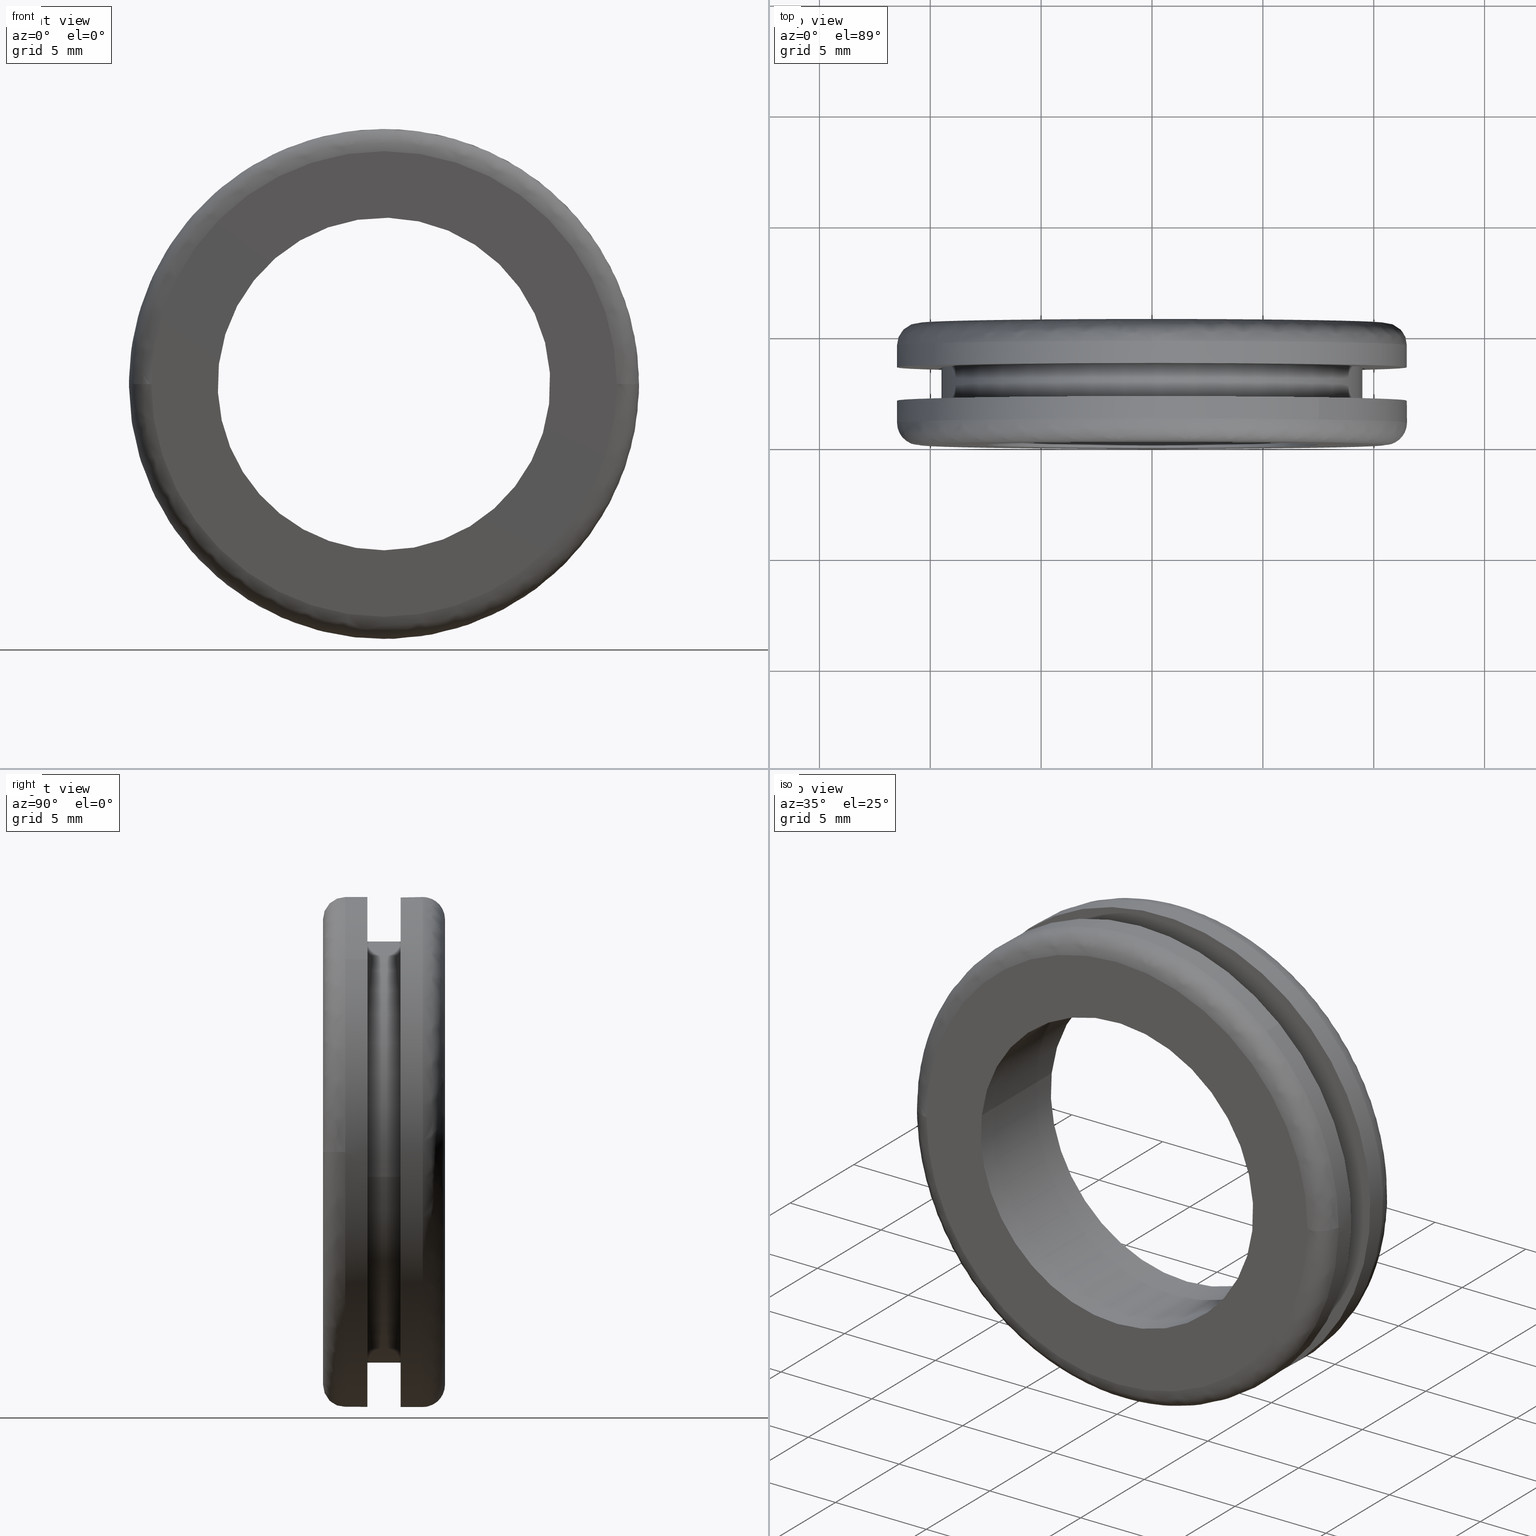
[diagram: canonical four-view strip — front | top / right | iso, engineering-drawing reading convention]
A machine part, canonical four-view strip (front | top / right | iso — engineering-drawing reading convention). The complete STEP part file that produces these views, byte-faithful:
ISO-10303-21;
HEADER;

FILE_DESCRIPTION( (''), '2;1');
FILE_NAME ('PC14.7972.TM_NG_79_L_CRUL_30958.stp','2019-12-12T16:43:38',(''),(''),'spGate 15.6.1','','');

FILE_SCHEMA (('AUTOMOTIVE_DESIGN'));
ENDSEC;

DATA;
#10=(GEOMETRIC_REPRESENTATION_CONTEXT(3) GLOBAL_UNCERTAINTY_ASSIGNED_CONTEXT((#11)) GLOBAL_UNIT_ASSIGNED_CONTEXT((#12,#13,#14)) REPRESENTATION_CONTEXT('ID1','3D'));
#11=UNCERTAINTY_MEASURE_WITH_UNIT(LENGTH_MEASURE(0.01),#15,'DISTANCE_ACCURACY_VALUE','Maximum model space distance between geometric entities at asserted connectivities');
#12=(NAMED_UNIT(*) SI_UNIT($,.STERADIAN.) SOLID_ANGLE_UNIT());
#13=(CONVERSION_BASED_UNIT('DEGREE',#16) NAMED_UNIT(#17) PLANE_ANGLE_UNIT());
#14=(LENGTH_UNIT() NAMED_UNIT(*) SI_UNIT(.MILLI.,.METRE.));
#15=(LENGTH_UNIT() NAMED_UNIT(*) SI_UNIT(.MILLI.,.METRE.));
#16=PLANE_ANGLE_MEASURE_WITH_UNIT(PLANE_ANGLE_MEASURE(0.01745329252),#18);
#17=DIMENSIONAL_EXPONENTS(0.0,0.0,0.0,0.0,0.0,0.0,0.0);
#18=(NAMED_UNIT(*) PLANE_ANGLE_UNIT() SI_UNIT($,.RADIAN.));
#19=MANIFOLD_SOLID_BREP('TM_NG_79_L_CRUL',#31);
#20=ADVANCED_BREP_SHAPE_REPRESENTATION('',(#19),#10);
#21=APPLICATION_CONTEXT('');
#22=APPLICATION_PROTOCOL_DEFINITION('International Standard','automotive_design',1999,#21);
#23=PRODUCT_DEFINITION_CONTEXT('',#21,'design');
#24=PRODUCT_CONTEXT('',#21,'mechanical');
#25=PRODUCT('','','',(#24));
#26=PRODUCT_DEFINITION_FORMATION_WITH_SPECIFIED_SOURCE('','',#25,.NOT_KNOWN.);
#27=PRODUCT_RELATED_PRODUCT_CATEGORY('tool','tool',(#25));
#28=PRODUCT_DEFINITION('','',#26,#23);
#29=PRODUCT_DEFINITION_SHAPE('','',#28);
#30=SHAPE_DEFINITION_REPRESENTATION(#29,#20);
#31=CLOSED_SHELL('',(#40,#41,#42,#43,#44,#45,#46,#47,#48,#49,#50,#51,#52,#53,#54,#55));
#32=COLOUR_RGB('',0.00000000000E+000,0.00000000000E+000,0.00000000000E+000);
#33=FILL_AREA_STYLE_COLOUR('',#32);
#34=FILL_AREA_STYLE('',(#33));
#35=SURFACE_STYLE_FILL_AREA(#34);
#36=SURFACE_SIDE_STYLE('',(#35));
#37=SURFACE_STYLE_USAGE(.BOTH.,#36);
#38=PRESENTATION_STYLE_ASSIGNMENT((#37));
#39=STYLED_ITEM('',(#38),#19);
#40=ADVANCED_FACE('',(#57,#58),#56,.F.);
#41=ADVANCED_FACE('',(#68,#69),#67,.F.);
#42=ADVANCED_FACE('',(#79,#80),#78,.F.);
#43=ADVANCED_FACE('',(#90,#91),#89,.F.);
#44=ADVANCED_FACE('',(#101),#100,.T.);
#45=ADVANCED_FACE('',(#111),#110,.T.);
#46=ADVANCED_FACE('',(#121),#120,.T.);
#47=ADVANCED_FACE('',(#131),#130,.T.);
#48=ADVANCED_FACE('',(#141),#140,.F.);
#49=ADVANCED_FACE('',(#151),#150,.F.);
#50=ADVANCED_FACE('',(#161),#160,.T.);
#51=ADVANCED_FACE('',(#171),#170,.T.);
#52=ADVANCED_FACE('',(#181),#180,.T.);
#53=ADVANCED_FACE('',(#191),#190,.T.);
#54=ADVANCED_FACE('',(#201),#200,.T.);
#55=ADVANCED_FACE('',(#211),#210,.T.);
#56=PLANE('',#223);
#57=FACE_OUTER_BOUND('',#224,.T.);
#58=FACE_BOUND('',#225,.T.);
#59=COLOUR_RGB('',1.00000000000E+000,1.00000000000E+000,1.00000000000E+000);
#60=FILL_AREA_STYLE_COLOUR('',#59);
#61=FILL_AREA_STYLE('',(#60));
#62=SURFACE_STYLE_FILL_AREA(#61);
#63=SURFACE_SIDE_STYLE('',(#62));
#64=SURFACE_STYLE_USAGE(.BOTH.,#63);
#65=PRESENTATION_STYLE_ASSIGNMENT((#64));
#66=STYLED_ITEM('',(#65),#40);
#67=PLANE('',#229);
#68=FACE_OUTER_BOUND('',#230,.T.);
#69=FACE_BOUND('',#231,.T.);
#70=COLOUR_RGB('',1.00000000000E+000,1.00000000000E+000,1.00000000000E+000);
#71=FILL_AREA_STYLE_COLOUR('',#70);
#72=FILL_AREA_STYLE('',(#71));
#73=SURFACE_STYLE_FILL_AREA(#72);
#74=SURFACE_SIDE_STYLE('',(#73));
#75=SURFACE_STYLE_USAGE(.BOTH.,#74);
#76=PRESENTATION_STYLE_ASSIGNMENT((#75));
#77=STYLED_ITEM('',(#76),#41);
#78=PLANE('',#235);
#79=FACE_OUTER_BOUND('',#236,.T.);
#80=FACE_BOUND('',#237,.T.);
#81=COLOUR_RGB('',1.00000000000E+000,1.00000000000E+000,1.00000000000E+000);
#82=FILL_AREA_STYLE_COLOUR('',#81);
#83=FILL_AREA_STYLE('',(#82));
#84=SURFACE_STYLE_FILL_AREA(#83);
#85=SURFACE_SIDE_STYLE('',(#84));
#86=SURFACE_STYLE_USAGE(.BOTH.,#85);
#87=PRESENTATION_STYLE_ASSIGNMENT((#86));
#88=STYLED_ITEM('',(#87),#42);
#89=PLANE('',#241);
#90=FACE_OUTER_BOUND('',#242,.T.);
#91=FACE_BOUND('',#243,.T.);
#92=COLOUR_RGB('',1.00000000000E+000,1.00000000000E+000,1.00000000000E+000);
#93=FILL_AREA_STYLE_COLOUR('',#92);
#94=FILL_AREA_STYLE('',(#93));
#95=SURFACE_STYLE_FILL_AREA(#94);
#96=SURFACE_SIDE_STYLE('',(#95));
#97=SURFACE_STYLE_USAGE(.BOTH.,#96);
#98=PRESENTATION_STYLE_ASSIGNMENT((#97));
#99=STYLED_ITEM('',(#98),#43);
#100=CYLINDRICAL_SURFACE('',#247,1.15000000000E+001);
#101=FACE_OUTER_BOUND('',#248,.T.);
#102=COLOUR_RGB('',1.00000000000E+000,1.00000000000E+000,1.00000000000E+000);
#103=FILL_AREA_STYLE_COLOUR('',#102);
#104=FILL_AREA_STYLE('',(#103));
#105=SURFACE_STYLE_FILL_AREA(#104);
#106=SURFACE_SIDE_STYLE('',(#105));
#107=SURFACE_STYLE_USAGE(.BOTH.,#106);
#108=PRESENTATION_STYLE_ASSIGNMENT((#107));
#109=STYLED_ITEM('',(#108),#44);
#110=CYLINDRICAL_SURFACE('',#252,1.15000000000E+001);
#111=FACE_OUTER_BOUND('',#253,.T.);
#112=COLOUR_RGB('',1.00000000000E+000,1.00000000000E+000,1.00000000000E+000);
#113=FILL_AREA_STYLE_COLOUR('',#112);
#114=FILL_AREA_STYLE('',(#113));
#115=SURFACE_STYLE_FILL_AREA(#114);
#116=SURFACE_SIDE_STYLE('',(#115));
#117=SURFACE_STYLE_USAGE(.BOTH.,#116);
#118=PRESENTATION_STYLE_ASSIGNMENT((#117));
#119=STYLED_ITEM('',(#118),#45);
#120=CYLINDRICAL_SURFACE('',#257,9.50000000000E+000);
#121=FACE_OUTER_BOUND('',#258,.T.);
#122=COLOUR_RGB('',1.00000000000E+000,1.00000000000E+000,1.00000000000E+000);
#123=FILL_AREA_STYLE_COLOUR('',#122);
#124=FILL_AREA_STYLE('',(#123));
#125=SURFACE_STYLE_FILL_AREA(#124);
#126=SURFACE_SIDE_STYLE('',(#125));
#127=SURFACE_STYLE_USAGE(.BOTH.,#126);
#128=PRESENTATION_STYLE_ASSIGNMENT((#127));
#129=STYLED_ITEM('',(#128),#46);
#130=CYLINDRICAL_SURFACE('',#262,9.50000000000E+000);
#131=FACE_OUTER_BOUND('',#263,.T.);
#132=COLOUR_RGB('',1.00000000000E+000,1.00000000000E+000,1.00000000000E+000);
#133=FILL_AREA_STYLE_COLOUR('',#132);
#134=FILL_AREA_STYLE('',(#133));
#135=SURFACE_STYLE_FILL_AREA(#134);
#136=SURFACE_SIDE_STYLE('',(#135));
#137=SURFACE_STYLE_USAGE(.BOTH.,#136);
#138=PRESENTATION_STYLE_ASSIGNMENT((#137));
#139=STYLED_ITEM('',(#138),#47);
#140=CYLINDRICAL_SURFACE('',#267,7.50000000000E+000);
#141=FACE_OUTER_BOUND('',#268,.T.);
#142=COLOUR_RGB('',1.00000000000E+000,1.00000000000E+000,1.00000000000E+000);
#143=FILL_AREA_STYLE_COLOUR('',#142);
#144=FILL_AREA_STYLE('',(#143));
#145=SURFACE_STYLE_FILL_AREA(#144);
#146=SURFACE_SIDE_STYLE('',(#145));
#147=SURFACE_STYLE_USAGE(.BOTH.,#146);
#148=PRESENTATION_STYLE_ASSIGNMENT((#147));
#149=STYLED_ITEM('',(#148),#48);
#150=CYLINDRICAL_SURFACE('',#272,7.50000000000E+000);
#151=FACE_OUTER_BOUND('',#273,.T.);
#152=COLOUR_RGB('',1.00000000000E+000,1.00000000000E+000,1.00000000000E+000);
#153=FILL_AREA_STYLE_COLOUR('',#152);
#154=FILL_AREA_STYLE('',(#153));
#155=SURFACE_STYLE_FILL_AREA(#154);
#156=SURFACE_SIDE_STYLE('',(#155));
#157=SURFACE_STYLE_USAGE(.BOTH.,#156);
#158=PRESENTATION_STYLE_ASSIGNMENT((#157));
#159=STYLED_ITEM('',(#158),#49);
#160=CYLINDRICAL_SURFACE('',#277,1.15000000000E+001);
#161=FACE_OUTER_BOUND('',#278,.T.);
#162=COLOUR_RGB('',1.00000000000E+000,1.00000000000E+000,1.00000000000E+000);
#163=FILL_AREA_STYLE_COLOUR('',#162);
#164=FILL_AREA_STYLE('',(#163));
#165=SURFACE_STYLE_FILL_AREA(#164);
#166=SURFACE_SIDE_STYLE('',(#165));
#167=SURFACE_STYLE_USAGE(.BOTH.,#166);
#168=PRESENTATION_STYLE_ASSIGNMENT((#167));
#169=STYLED_ITEM('',(#168),#50);
#170=CYLINDRICAL_SURFACE('',#282,1.15000000000E+001);
#171=FACE_OUTER_BOUND('',#283,.T.);
#172=COLOUR_RGB('',1.00000000000E+000,1.00000000000E+000,1.00000000000E+000);
#173=FILL_AREA_STYLE_COLOUR('',#172);
#174=FILL_AREA_STYLE('',(#173));
#175=SURFACE_STYLE_FILL_AREA(#174);
#176=SURFACE_SIDE_STYLE('',(#175));
#177=SURFACE_STYLE_USAGE(.BOTH.,#176);
#178=PRESENTATION_STYLE_ASSIGNMENT((#177));
#179=STYLED_ITEM('',(#178),#51);
#180=( BOUNDED_SURFACE() B_SPLINE_SURFACE( 2,2,((#284,#285,#286,#287,#288),(#289,#290,#291,#292,#293),(#294,#295,#296,#297,#298),(#299,#300,#301,#302,#303),(#304,#305,#306,#307,#308)), .UNSPECIFIED.,.F.,.F.,.F.) B_SPLINE_SURFACE_WITH_KNOTS((3,2,3),(3,2,3),(0.00000000000E+000,5.00000000000E-001,1.00000000000E+000),(0.00000000000E+000,5.00000000000E-001,1.00000000000E+000), .UNSPECIFIED. ) GEOMETRIC_REPRESENTATION_ITEM() RATIONAL_B_SPLINE_SURFACE(((1.00000000000E+000,7.07106781187E-001,1.00000000000E+000,7.07106781187E-001,1.00000000000E+000),(7.07106781187E-001,5.00000000000E-001,7.07106781187E-001,5.00000000000E-001,7.07106781187E-001),(1.00000000000E+000,7.07106781187E-001,1.00000000000E+000,7.07106781187E-001,1.00000000000E+000),(7.07106781187E-001,5.00000000000E-001,7.07106781187E-001,5.00000000000E-001,7.07106781187E-001),(1.00000000000E+000,7.07106781187E-001,1.00000000000E+000,7.07106781187E-001,1.00000000000E+000))) REPRESENTATION_ITEM('') SURFACE() );
#181=FACE_OUTER_BOUND('',#309,.T.);
#182=COLOUR_RGB('',1.00000000000E+000,1.00000000000E+000,1.00000000000E+000);
#183=FILL_AREA_STYLE_COLOUR('',#182);
#184=FILL_AREA_STYLE('',(#183));
#185=SURFACE_STYLE_FILL_AREA(#184);
#186=SURFACE_SIDE_STYLE('',(#185));
#187=SURFACE_STYLE_USAGE(.BOTH.,#186);
#188=PRESENTATION_STYLE_ASSIGNMENT((#187));
#189=STYLED_ITEM('',(#188),#52);
#190=( BOUNDED_SURFACE() B_SPLINE_SURFACE( 2,2,((#310,#311,#312,#313,#314),(#315,#316,#317,#318,#319),(#320,#321,#322,#323,#324),(#325,#326,#327,#328,#329),(#330,#331,#332,#333,#334)), .UNSPECIFIED.,.F.,.F.,.F.) B_SPLINE_SURFACE_WITH_KNOTS((3,2,3),(3,2,3),(0.00000000000E+000,5.00000000000E-001,1.00000000000E+000),(0.00000000000E+000,5.00000000000E-001,1.00000000000E+000), .UNSPECIFIED. ) GEOMETRIC_REPRESENTATION_ITEM() RATIONAL_B_SPLINE_SURFACE(((1.00000000000E+000,7.07106781187E-001,1.00000000000E+000,7.07106781187E-001,1.00000000000E+000),(7.07106781187E-001,5.00000000000E-001,7.07106781187E-001,5.00000000000E-001,7.07106781187E-001),(1.00000000000E+000,7.07106781187E-001,1.00000000000E+000,7.07106781187E-001,1.00000000000E+000),(7.07106781187E-001,5.00000000000E-001,7.07106781187E-001,5.00000000000E-001,7.07106781187E-001),(1.00000000000E+000,7.07106781187E-001,1.00000000000E+000,7.07106781187E-001,1.00000000000E+000))) REPRESENTATION_ITEM('') SURFACE() );
#191=FACE_OUTER_BOUND('',#335,.T.);
#192=COLOUR_RGB('',1.00000000000E+000,1.00000000000E+000,1.00000000000E+000);
#193=FILL_AREA_STYLE_COLOUR('',#192);
#194=FILL_AREA_STYLE('',(#193));
#195=SURFACE_STYLE_FILL_AREA(#194);
#196=SURFACE_SIDE_STYLE('',(#195));
#197=SURFACE_STYLE_USAGE(.BOTH.,#196);
#198=PRESENTATION_STYLE_ASSIGNMENT((#197));
#199=STYLED_ITEM('',(#198),#53);
#200=( BOUNDED_SURFACE() B_SPLINE_SURFACE( 2,2,((#336,#337,#338,#339,#340),(#341,#342,#343,#344,#345),(#346,#347,#348,#349,#350),(#351,#352,#353,#354,#355),(#356,#357,#358,#359,#360)), .UNSPECIFIED.,.F.,.F.,.F.) B_SPLINE_SURFACE_WITH_KNOTS((3,2,3),(3,2,3),(0.00000000000E+000,5.00000000000E-001,1.00000000000E+000),(0.00000000000E+000,5.00000000000E-001,1.00000000000E+000), .UNSPECIFIED. ) GEOMETRIC_REPRESENTATION_ITEM() RATIONAL_B_SPLINE_SURFACE(((1.00000000000E+000,7.07106780196E-001,1.00000000000E+000,7.07106780196E-001,1.00000000000E+000),(7.07106781187E-001,4.99999999300E-001,7.07106781187E-001,4.99999999300E-001,7.07106781187E-001),(1.00000000000E+000,7.07106780196E-001,1.00000000000E+000,7.07106780196E-001,1.00000000000E+000),(7.07106781187E-001,4.99999999300E-001,7.07106781187E-001,4.99999999300E-001,7.07106781187E-001),(1.00000000000E+000,7.07106780196E-001,1.00000000000E+000,7.07106780196E-001,1.00000000000E+000))) REPRESENTATION_ITEM('') SURFACE() );
#201=FACE_OUTER_BOUND('',#361,.T.);
#202=COLOUR_RGB('',1.00000000000E+000,1.00000000000E+000,1.00000000000E+000);
#203=FILL_AREA_STYLE_COLOUR('',#202);
#204=FILL_AREA_STYLE('',(#203));
#205=SURFACE_STYLE_FILL_AREA(#204);
#206=SURFACE_SIDE_STYLE('',(#205));
#207=SURFACE_STYLE_USAGE(.BOTH.,#206);
#208=PRESENTATION_STYLE_ASSIGNMENT((#207));
#209=STYLED_ITEM('',(#208),#54);
#210=( BOUNDED_SURFACE() B_SPLINE_SURFACE( 2,2,((#362,#363,#364,#365,#366),(#367,#368,#369,#370,#371),(#372,#373,#374,#375,#376),(#377,#378,#379,#380,#381),(#382,#383,#384,#385,#386)), .UNSPECIFIED.,.F.,.F.,.F.) B_SPLINE_SURFACE_WITH_KNOTS((3,2,3),(3,2,3),(0.00000000000E+000,5.00000000000E-001,1.00000000000E+000),(0.00000000000E+000,5.00000000000E-001,1.00000000000E+000), .UNSPECIFIED. ) GEOMETRIC_REPRESENTATION_ITEM() RATIONAL_B_SPLINE_SURFACE(((1.00000000000E+000,7.07106780196E-001,1.00000000000E+000,7.07106780196E-001,1.00000000000E+000),(7.07106781187E-001,4.99999999300E-001,7.07106781187E-001,4.99999999300E-001,7.07106781187E-001),(1.00000000000E+000,7.07106780196E-001,1.00000000000E+000,7.07106780196E-001,1.00000000000E+000),(7.07106781187E-001,4.99999999300E-001,7.07106781187E-001,4.99999999300E-001,7.07106781187E-001),(1.00000000000E+000,7.07106780196E-001,1.00000000000E+000,7.07106780196E-001,1.00000000000E+000))) REPRESENTATION_ITEM('') SURFACE() );
#211=FACE_OUTER_BOUND('',#387,.T.);
#212=COLOUR_RGB('',1.00000000000E+000,1.00000000000E+000,1.00000000000E+000);
#213=FILL_AREA_STYLE_COLOUR('',#212);
#214=FILL_AREA_STYLE('',(#213));
#215=SURFACE_STYLE_FILL_AREA(#214);
#216=SURFACE_SIDE_STYLE('',(#215));
#217=SURFACE_STYLE_USAGE(.BOTH.,#216);
#218=PRESENTATION_STYLE_ASSIGNMENT((#217));
#219=STYLED_ITEM('',(#218),#55);
#220=CARTESIAN_POINT('',(-2.62541476943E+001,2.00000000000E+000,2.58247788262E+001));
#221=DIRECTION('',(0.00000000000E+000,-1.00000000000E+000,0.00000000000E+000));
#222=DIRECTION('',(0.00000000000E+000,0.00000000000E+000,-1.00000000000E+000));
#223=AXIS2_PLACEMENT_3D('',#220,#221,#222);
#224=EDGE_LOOP('',(#388,#389,#390));
#225=EDGE_LOOP('',(#391,#392,#393));
#226=CARTESIAN_POINT('',(-2.39023011444E+001,3.50000000000E+000,-1.49499999999E+001));
#227=DIRECTION('',(0.00000000000E+000,1.00000000000E+000,0.00000000000E+000));
#228=DIRECTION('',(0.00000000000E+000,0.00000000000E+000,1.00000000000E+000));
#229=AXIS2_PLACEMENT_3D('',#226,#227,#228);
#230=EDGE_LOOP('',(#394,#395,#396));
#231=EDGE_LOOP('',(#397,#398,#399));
#232=CARTESIAN_POINT('',(-1.36500000129E+001,5.50000000000E+000,2.18238401837E+001));
#233=DIRECTION('',(0.00000000000E+000,-1.00000000000E+000,0.00000000000E+000));
#234=DIRECTION('',(0.00000000000E+000,0.00000000000E+000,-1.00000000000E+000));
#235=AXIS2_PLACEMENT_3D('',#232,#233,#234);
#236=EDGE_LOOP('',(#400,#401,#402));
#237=EDGE_LOOP('',(#403,#404,#405));
#238=CARTESIAN_POINT('',(-2.18238401765E+001,-1.65321900000E-015,-2.41500000007E+001));
#239=DIRECTION('',(0.00000000000E+000,1.00000000000E+000,0.00000000000E+000));
#240=DIRECTION('',(0.00000000000E+000,0.00000000000E+000,1.00000000000E+000));
#241=AXIS2_PLACEMENT_3D('',#238,#239,#240);
#242=EDGE_LOOP('',(#406,#407,#408));
#243=EDGE_LOOP('',(#409,#410,#411));
#244=CARTESIAN_POINT('',(-9.33567427328E-016,2.02500000000E+000,1.92395599790E-016));
#245=DIRECTION('',(-8.64038217719E-017,1.00000000000E+000,4.92319259377E-017));
#246=DIRECTION('',(6.54339657003E-001,1.93082265152E-017,7.56200775769E-001));
#247=AXIS2_PLACEMENT_3D('',#244,#245,#246);
#248=EDGE_LOOP('',(#412,#413,#414,#415,#416,#417));
#249=CARTESIAN_POINT('',(-9.33567427328E-016,2.02500000000E+000,1.92395599790E-016));
#250=DIRECTION('',(-8.64038217719E-017,1.00000000000E+000,4.92319259377E-017));
#251=DIRECTION('',(6.54339657003E-001,1.93082265152E-017,7.56200775769E-001));
#252=AXIS2_PLACEMENT_3D('',#249,#250,#251);
#253=EDGE_LOOP('',(#418,#419,#420,#421,#422,#423,#424,#425));
#254=CARTESIAN_POINT('',(2.49537272976E-016,3.53750000000E+000,-4.37168135886E-016));
#255=DIRECTION('',(-5.75729912391E-017,1.00000000000E+000,-4.84355483203E-016));
#256=DIRECTION('',(-9.93009526364E-001,-2.46519032882E-032,1.18034234657E-001));
#257=AXIS2_PLACEMENT_3D('',#254,#255,#256);
#258=EDGE_LOOP('',(#426,#427,#428,#429));
#259=CARTESIAN_POINT('',(2.49537272976E-016,3.53750000000E+000,-4.37168135886E-016));
#260=DIRECTION('',(-5.75729912391E-017,1.00000000000E+000,-4.84355483203E-016));
#261=DIRECTION('',(-9.93009526364E-001,-2.46519032882E-032,1.18034234657E-001));
#262=AXIS2_PLACEMENT_3D('',#259,#260,#261);
#263=EDGE_LOOP('',(#430,#431,#432,#433,#434,#435));
#264=CARTESIAN_POINT('',(5.27165160170E-016,5.63750000000E+000,7.09396613012E-015));
#265=DIRECTION('',(2.42500678693E-016,1.00000000000E+000,2.54178272610E-015));
#266=DIRECTION('',(-9.93009526364E-001,-5.92118946467E-017,1.18034234657E-001));
#267=AXIS2_PLACEMENT_3D('',#264,#265,#266);
#268=EDGE_LOOP('',(#436,#437,#438,#439));
#269=CARTESIAN_POINT('',(5.27165160170E-016,5.63750000000E+000,7.09396613012E-015));
#270=DIRECTION('',(2.42500678693E-016,1.00000000000E+000,2.54178272610E-015));
#271=DIRECTION('',(-9.93009526364E-001,-5.92118946467E-017,1.18034234657E-001));
#272=AXIS2_PLACEMENT_3D('',#269,#270,#271);
#273=EDGE_LOOP('',(#440,#441,#442,#443,#444,#445));
#274=CARTESIAN_POINT('',(1.56933462389E-015,4.52500000007E+000,-1.72026819255E-015));
#275=DIRECTION('',(-3.94093450082E-016,1.00000000000E+000,1.06771963056E-016));
#276=DIRECTION('',(-3.51617974392E-001,-3.86164530304E-017,-9.36143578777E-001));
#277=AXIS2_PLACEMENT_3D('',#274,#275,#276);
#278=EDGE_LOOP('',(#446,#447,#448,#449,#450,#451,#452));
#279=CARTESIAN_POINT('',(1.56933462389E-015,4.52500000007E+000,-1.72026819255E-015));
#280=DIRECTION('',(-3.94093450082E-016,1.00000000000E+000,1.06771963056E-016));
#281=DIRECTION('',(-3.51617974392E-001,-3.86164530304E-017,-9.36143578777E-001));
#282=AXIS2_PLACEMENT_3D('',#279,#280,#281);
#283=EDGE_LOOP('',(#453,#454,#455,#456,#457,#458));
#284=CARTESIAN_POINT('',(-4.06283351146E-014,4.50000000000E+000,9.50000000000E+000));
#285=CARTESIAN_POINT('',(-4.01727829216E-014,5.50000000000E+000,9.50000000000E+000));
#286=CARTESIAN_POINT('',(-4.02952435569E-014,5.50000000000E+000,1.05000000000E+001));
#287=CARTESIAN_POINT('',(-4.04177041923E-014,5.50000000000E+000,1.15000000000E+001));
#288=CARTESIAN_POINT('',(-4.08732563854E-014,4.50000000000E+000,1.15000000000E+001));
#289=CARTESIAN_POINT('',(-9.50000000000E+000,4.50000000000E+000,9.50000000000E+000));
#290=CARTESIAN_POINT('',(-9.50000000000E+000,5.50000000000E+000,9.50000000000E+000));
#291=CARTESIAN_POINT('',(-1.05000000000E+001,5.50000000000E+000,1.05000000000E+001));
#292=CARTESIAN_POINT('',(-1.15000000000E+001,5.50000000000E+000,1.15000000000E+001));
#293=CARTESIAN_POINT('',(-1.15000000000E+001,4.50000000000E+000,1.15000000000E+001));
#294=CARTESIAN_POINT('',(-9.50000000000E+000,4.50000000000E+000,-8.55831191294E-014));
#295=CARTESIAN_POINT('',(-9.50000000000E+000,5.50000000000E+000,-8.43768611108E-014));
#296=CARTESIAN_POINT('',(-1.05000000000E+001,5.50000000000E+000,-8.44380894063E-014));
#297=CARTESIAN_POINT('',(-1.15000000000E+001,5.50000000000E+000,-8.44993177017E-014));
#298=CARTESIAN_POINT('',(-1.15000000000E+001,4.50000000000E+000,-8.57055757202E-014));
#299=CARTESIAN_POINT('',(-9.50000000000E+000,4.50000000000E+000,-9.50000000000E+000));
#300=CARTESIAN_POINT('',(-9.50000000000E+000,5.50000000000E+000,-9.50000000000E+000));
#301=CARTESIAN_POINT('',(-1.05000000000E+001,5.50000000000E+000,-1.05000000000E+001));
#302=CARTESIAN_POINT('',(-1.15000000000E+001,5.50000000000E+000,-1.15000000000E+001));
#303=CARTESIAN_POINT('',(-1.15000000000E+001,4.50000000000E+000,-1.15000000000E+001));
#304=CARTESIAN_POINT('',(-3.94649975015E-014,4.50000000000E+000,-9.50000000000E+000));
#305=CARTESIAN_POINT('',(-3.90094453085E-014,5.50000000000E+000,-9.50000000000E+000));
#306=CARTESIAN_POINT('',(-3.90094493530E-014,5.50000000000E+000,-1.05000000000E+001));
#307=CARTESIAN_POINT('',(-3.90094533976E-014,5.50000000000E+000,-1.15000000000E+001));
#308=CARTESIAN_POINT('',(-3.94650055906E-014,4.50000000000E+000,-1.15000000000E+001));
#309=EDGE_LOOP('',(#459,#460,#461,#462,#463,#464,#465,#466));
#310=CARTESIAN_POINT('',(-3.94649975015E-014,4.50000000000E+000,-9.50000000000E+000));
#311=CARTESIAN_POINT('',(-3.90094453085E-014,5.50000000000E+000,-9.50000000000E+000));
#312=CARTESIAN_POINT('',(-3.90094493530E-014,5.50000000000E+000,-1.05000000000E+001));
#313=CARTESIAN_POINT('',(-3.90094533976E-014,5.50000000000E+000,-1.15000000000E+001));
#314=CARTESIAN_POINT('',(-3.94650055906E-014,4.50000000000E+000,-1.15000000000E+001));
#315=CARTESIAN_POINT('',(9.50000000000E+000,4.50000000000E+000,-9.50000000000E+000));
#316=CARTESIAN_POINT('',(9.50000000000E+000,5.50000000000E+000,-9.50000000000E+000));
#317=CARTESIAN_POINT('',(1.05000000000E+001,5.50000000000E+000,-1.05000000000E+001));
#318=CARTESIAN_POINT('',(1.15000000000E+001,5.50000000000E+000,-1.15000000000E+001));
#319=CARTESIAN_POINT('',(1.15000000000E+001,4.50000000000E+000,-1.15000000000E+001));
#320=CARTESIAN_POINT('',(9.50000000000E+000,4.50000000000E+000,-8.55831959755E-014));
#321=CARTESIAN_POINT('',(9.50000000000E+000,5.50000000000E+000,-8.43769379569E-014));
#322=CARTESIAN_POINT('',(1.05000000000E+001,5.50000000000E+000,-8.44381743414E-014));
#323=CARTESIAN_POINT('',(1.15000000000E+001,5.50000000000E+000,-8.44994107259E-014));
#324=CARTESIAN_POINT('',(1.15000000000E+001,4.50000000000E+000,-8.57056687445E-014));
#325=CARTESIAN_POINT('',(9.50000000000E+000,4.50000000000E+000,9.50000000000E+000));
#326=CARTESIAN_POINT('',(9.50000000000E+000,5.50000000000E+000,9.50000000000E+000));
#327=CARTESIAN_POINT('',(1.05000000000E+001,5.50000000000E+000,1.05000000000E+001));
#328=CARTESIAN_POINT('',(1.15000000000E+001,5.50000000000E+000,1.15000000000E+001));
#329=CARTESIAN_POINT('',(1.15000000000E+001,4.50000000000E+000,1.15000000000E+001));
#330=CARTESIAN_POINT('',(-3.83015061962E-014,4.50000000000E+000,9.50000000000E+000));
#331=CARTESIAN_POINT('',(-3.78459540032E-014,5.50000000000E+000,9.50000000000E+000));
#332=CARTESIAN_POINT('',(-3.77234852787E-014,5.50000000000E+000,1.05000000000E+001));
#333=CARTESIAN_POINT('',(-3.76010165543E-014,5.50000000000E+000,1.15000000000E+001));
#334=CARTESIAN_POINT('',(-3.80565687473E-014,4.50000000000E+000,1.15000000000E+001));
#335=EDGE_LOOP('',(#467,#468,#469,#470,#471));
#336=CARTESIAN_POINT('',(-1.15000000000E+001,1.00000000000E+000,6.51686820827E-016));
#337=CARTESIAN_POINT('',(-1.15000000000E+001,-2.80108231842E-009,6.70066600346E-016));
#338=CARTESIAN_POINT('',(-1.04999999972E+001,4.44089209850E-016,7.92527236020E-016));
#339=CARTESIAN_POINT('',(-9.49999999440E+000,2.80108294645E-009,9.14987871693E-016));
#340=CARTESIAN_POINT('',(-9.50000000000E+000,1.00000000560E+000,8.96608091488E-016));
#341=CARTESIAN_POINT('',(-1.15000000000E+001,1.00000000000E+000,-1.15000000000E+001));
#342=CARTESIAN_POINT('',(-1.15000000000E+001,-2.80108260550E-009,-1.15000000000E+001));
#343=CARTESIAN_POINT('',(-1.04999999972E+001,2.60141436227E-016,-1.04999999972E+001));
#344=CARTESIAN_POINT('',(-9.49999999440E+000,2.80108281638E-009,-9.49999999440E+000));
#345=CARTESIAN_POINT('',(-9.50000000000E+000,1.00000000560E+000,-9.50000000000E+000));
#346=CARTESIAN_POINT('',(7.64301930129E-015,1.00000000000E+000,-1.15000000000E+001));
#347=CARTESIAN_POINT('',(7.66234697199E-015,-2.80108231842E-009,-1.15000000000E+001));
#348=CARTESIAN_POINT('',(7.60111867634E-015,4.44089209850E-016,-1.04999999972E+001));
#349=CARTESIAN_POINT('',(7.53989038069E-015,2.80108294645E-009,-9.49999999440E+000));
#350=CARTESIAN_POINT('',(7.52056271034E-015,1.00000000560E+000,-9.50000000000E+000));
#351=CARTESIAN_POINT('',(1.15000000000E+001,1.00000000000E+000,-1.15000000000E+001));
#352=CARTESIAN_POINT('',(1.15000000000E+001,-2.80108216141E-009,-1.15000000000E+001));
#353=CARTESIAN_POINT('',(1.04999999972E+001,6.66133814775E-016,-1.04999999972E+001));
#354=CARTESIAN_POINT('',(9.49999999440E+000,2.80108310346E-009,-9.49999999440E+000));
#355=CARTESIAN_POINT('',(9.50000000000E+000,1.00000000560E+000,-9.50000000000E+000));
#356=CARTESIAN_POINT('',(1.15000000000E+001,1.00000000000E+000,2.05993761560E-015));
#357=CARTESIAN_POINT('',(1.15000000000E+001,-2.80108184739E-009,2.07831739512E-015));
#358=CARTESIAN_POINT('',(1.04999999972E+001,8.88178419700E-016,2.07832143960E-015));
#359=CARTESIAN_POINT('',(9.49999999440E+000,2.80108326047E-009,2.07832548408E-015));
#360=CARTESIAN_POINT('',(9.50000000000E+000,1.00000000560E+000,2.05994570456E-015));
#361=EDGE_LOOP('',(#472,#473,#474,#475,#476,#477));
#362=CARTESIAN_POINT('',(1.15000000000E+001,1.00000000000E+000,2.05993761560E-015));
#363=CARTESIAN_POINT('',(1.15000000000E+001,-2.80108184739E-009,2.07831739512E-015));
#364=CARTESIAN_POINT('',(1.04999999972E+001,8.88178419700E-016,2.07832143960E-015));
#365=CARTESIAN_POINT('',(9.49999999440E+000,2.80108341748E-009,2.07832548408E-015));
#366=CARTESIAN_POINT('',(9.50000000000E+000,1.00000000560E+000,2.05994570456E-015));
#367=CARTESIAN_POINT('',(1.15000000000E+001,1.00000000000E+000,1.15000000000E+001));
#368=CARTESIAN_POINT('',(1.15000000000E+001,-2.80108156031E-009,1.15000000000E+001));
#369=CARTESIAN_POINT('',(1.04999999972E+001,1.07212619332E-015,1.04999999972E+001));
#370=CARTESIAN_POINT('',(9.49999999440E+000,2.80108354755E-009,9.49999999440E+000));
#371=CARTESIAN_POINT('',(9.50000000000E+000,1.00000000560E+000,9.50000000000E+000));
#372=CARTESIAN_POINT('',(7.64311232554E-015,1.00000000000E+000,1.15000000000E+001));
#373=CARTESIAN_POINT('',(7.66243999624E-015,-2.80108184739E-009,1.15000000000E+001));
#374=CARTESIAN_POINT('',(7.60120361152E-015,8.88178419700E-016,1.04999999972E+001));
#375=CARTESIAN_POINT('',(7.53996722681E-015,2.80108341748E-009,9.49999999440E+000));
#376=CARTESIAN_POINT('',(7.52063955645E-015,1.00000000560E+000,9.50000000000E+000));
#377=CARTESIAN_POINT('',(-1.15000000000E+001,1.00000000000E+000,1.15000000000E+001));
#378=CARTESIAN_POINT('',(-1.15000000000E+001,-2.80108200440E-009,1.15000000000E+001));
#379=CARTESIAN_POINT('',(-1.04999999972E+001,6.66133814775E-016,1.04999999972E+001));
#380=CARTESIAN_POINT('',(-9.49999999440E+000,2.80108326047E-009,9.49999999440E+000));
#381=CARTESIAN_POINT('',(-9.50000000000E+000,1.00000000560E+000,9.50000000000E+000));
#382=CARTESIAN_POINT('',(-1.15000000000E+001,1.00000000000E+000,3.46837445887E-015));
#383=CARTESIAN_POINT('',(-1.15000000000E+001,-2.80108231842E-009,3.48675423838E-015));
#384=CARTESIAN_POINT('',(-1.04999999972E+001,4.44089209850E-016,3.36428551354E-015));
#385=CARTESIAN_POINT('',(-9.49999999440E+000,2.80108310346E-009,3.24181678870E-015));
#386=CARTESIAN_POINT('',(-9.50000000000E+000,1.00000000560E+000,3.22343700987E-015));
#387=EDGE_LOOP('',(#478,#479,#480,#481,#482,#483,#484,#485));
#388=ORIENTED_EDGE('',*,*,#486,.F.);
#389=ORIENTED_EDGE('',*,*,#487,.F.);
#390=ORIENTED_EDGE('',*,*,#488,.F.);
#391=ORIENTED_EDGE('',*,*,#489,.T.);
#392=ORIENTED_EDGE('',*,*,#490,.T.);
#393=ORIENTED_EDGE('',*,*,#491,.T.);
#394=ORIENTED_EDGE('',*,*,#492,.T.);
#395=ORIENTED_EDGE('',*,*,#493,.T.);
#396=ORIENTED_EDGE('',*,*,#494,.T.);
#397=ORIENTED_EDGE('',*,*,#495,.F.);
#398=ORIENTED_EDGE('',*,*,#496,.F.);
#399=ORIENTED_EDGE('',*,*,#497,.F.);
#400=ORIENTED_EDGE('',*,*,#498,.F.);
#401=ORIENTED_EDGE('',*,*,#499,.F.);
#402=ORIENTED_EDGE('',*,*,#500,.F.);
#403=ORIENTED_EDGE('',*,*,#501,.T.);
#404=ORIENTED_EDGE('',*,*,#502,.T.);
#405=ORIENTED_EDGE('',*,*,#503,.T.);
#406=ORIENTED_EDGE('',*,*,#504,.T.);
#407=ORIENTED_EDGE('',*,*,#505,.T.);
#408=ORIENTED_EDGE('',*,*,#506,.T.);
#409=ORIENTED_EDGE('',*,*,#507,.F.);
#410=ORIENTED_EDGE('',*,*,#508,.F.);
#411=ORIENTED_EDGE('',*,*,#509,.F.);
#412=ORIENTED_EDGE('',*,*,#487,.T.);
#413=ORIENTED_EDGE('',*,*,#510,.F.);
#414=ORIENTED_EDGE('',*,*,#511,.F.);
#415=ORIENTED_EDGE('',*,*,#512,.F.);
#416=ORIENTED_EDGE('',*,*,#513,.F.);
#417=ORIENTED_EDGE('',*,*,#514,.T.);
#418=ORIENTED_EDGE('',*,*,#515,.F.);
#419=ORIENTED_EDGE('',*,*,#516,.F.);
#420=ORIENTED_EDGE('',*,*,#517,.F.);
#421=ORIENTED_EDGE('',*,*,#518,.F.);
#422=ORIENTED_EDGE('',*,*,#510,.T.);
#423=ORIENTED_EDGE('',*,*,#486,.T.);
#424=ORIENTED_EDGE('',*,*,#488,.T.);
#425=ORIENTED_EDGE('',*,*,#514,.F.);
#426=ORIENTED_EDGE('',*,*,#496,.T.);
#427=ORIENTED_EDGE('',*,*,#519,.F.);
#428=ORIENTED_EDGE('',*,*,#490,.F.);
#429=ORIENTED_EDGE('',*,*,#520,.T.);
#430=ORIENTED_EDGE('',*,*,#489,.F.);
#431=ORIENTED_EDGE('',*,*,#491,.F.);
#432=ORIENTED_EDGE('',*,*,#519,.T.);
#433=ORIENTED_EDGE('',*,*,#495,.T.);
#434=ORIENTED_EDGE('',*,*,#497,.T.);
#435=ORIENTED_EDGE('',*,*,#520,.F.);
#436=ORIENTED_EDGE('',*,*,#508,.T.);
#437=ORIENTED_EDGE('',*,*,#521,.T.);
#438=ORIENTED_EDGE('',*,*,#502,.F.);
#439=ORIENTED_EDGE('',*,*,#522,.F.);
#440=ORIENTED_EDGE('',*,*,#501,.F.);
#441=ORIENTED_EDGE('',*,*,#503,.F.);
#442=ORIENTED_EDGE('',*,*,#521,.F.);
#443=ORIENTED_EDGE('',*,*,#507,.T.);
#444=ORIENTED_EDGE('',*,*,#509,.T.);
#445=ORIENTED_EDGE('',*,*,#522,.T.);
#446=ORIENTED_EDGE('',*,*,#523,.T.);
#447=ORIENTED_EDGE('',*,*,#524,.T.);
#448=ORIENTED_EDGE('',*,*,#525,.T.);
#449=ORIENTED_EDGE('',*,*,#526,.T.);
#450=ORIENTED_EDGE('',*,*,#527,.F.);
#451=ORIENTED_EDGE('',*,*,#493,.F.);
#452=ORIENTED_EDGE('',*,*,#528,.T.);
#453=ORIENTED_EDGE('',*,*,#492,.F.);
#454=ORIENTED_EDGE('',*,*,#494,.F.);
#455=ORIENTED_EDGE('',*,*,#527,.T.);
#456=ORIENTED_EDGE('',*,*,#529,.T.);
#457=ORIENTED_EDGE('',*,*,#530,.T.);
#458=ORIENTED_EDGE('',*,*,#528,.F.);
#459=ORIENTED_EDGE('',*,*,#529,.F.);
#460=ORIENTED_EDGE('',*,*,#526,.F.);
#461=ORIENTED_EDGE('',*,*,#525,.F.);
#462=ORIENTED_EDGE('',*,*,#524,.F.);
#463=ORIENTED_EDGE('',*,*,#531,.F.);
#464=ORIENTED_EDGE('',*,*,#498,.T.);
#465=ORIENTED_EDGE('',*,*,#500,.T.);
#466=ORIENTED_EDGE('',*,*,#532,.T.);
#467=ORIENTED_EDGE('',*,*,#499,.T.);
#468=ORIENTED_EDGE('',*,*,#531,.T.);
#469=ORIENTED_EDGE('',*,*,#523,.F.);
#470=ORIENTED_EDGE('',*,*,#530,.F.);
#471=ORIENTED_EDGE('',*,*,#532,.F.);
#472=ORIENTED_EDGE('',*,*,#505,.F.);
#473=ORIENTED_EDGE('',*,*,#533,.F.);
#474=ORIENTED_EDGE('',*,*,#515,.T.);
#475=ORIENTED_EDGE('',*,*,#513,.T.);
#476=ORIENTED_EDGE('',*,*,#512,.T.);
#477=ORIENTED_EDGE('',*,*,#534,.T.);
#478=ORIENTED_EDGE('',*,*,#511,.T.);
#479=ORIENTED_EDGE('',*,*,#518,.T.);
#480=ORIENTED_EDGE('',*,*,#517,.T.);
#481=ORIENTED_EDGE('',*,*,#516,.T.);
#482=ORIENTED_EDGE('',*,*,#533,.T.);
#483=ORIENTED_EDGE('',*,*,#504,.F.);
#484=ORIENTED_EDGE('',*,*,#506,.F.);
#485=ORIENTED_EDGE('',*,*,#534,.F.);
#486=EDGE_CURVE('',#535,#536,#537,.T.);
#487=EDGE_CURVE('',#543,#535,#544,.T.);
#488=EDGE_CURVE('',#536,#543,#550,.T.);
#489=EDGE_CURVE('',#556,#557,#558,.T.);
#490=EDGE_CURVE('',#557,#564,#565,.T.);
#491=EDGE_CURVE('',#564,#556,#571,.T.);
#492=EDGE_CURVE('',#577,#578,#579,.T.);
#493=EDGE_CURVE('',#578,#585,#586,.T.);
#494=EDGE_CURVE('',#585,#577,#592,.T.);
#495=EDGE_CURVE('',#598,#599,#600,.T.);
#496=EDGE_CURVE('',#606,#598,#607,.T.);
#497=EDGE_CURVE('',#599,#606,#613,.T.);
#498=EDGE_CURVE('',#619,#620,#621,.T.);
#499=EDGE_CURVE('',#627,#619,#628,.T.);
#500=EDGE_CURVE('',#620,#627,#634,.T.);
#501=EDGE_CURVE('',#640,#641,#642,.T.);
#502=EDGE_CURVE('',#641,#648,#649,.T.);
#503=EDGE_CURVE('',#648,#640,#655,.T.);
#504=EDGE_CURVE('',#661,#662,#663,.T.);
#505=EDGE_CURVE('',#662,#669,#670,.T.);
#506=EDGE_CURVE('',#669,#661,#676,.T.);
#507=EDGE_CURVE('',#682,#683,#684,.T.);
#508=EDGE_CURVE('',#690,#682,#691,.T.);
#509=EDGE_CURVE('',#683,#690,#697,.T.);
#510=EDGE_CURVE('',#703,#535,#704,.T.);
#511=EDGE_CURVE('',#710,#703,#711,.T.);
#512=EDGE_CURVE('',#717,#710,#718,.T.);
#513=EDGE_CURVE('',#724,#717,#725,.T.);
#514=EDGE_CURVE('',#724,#543,#731,.T.);
#515=EDGE_CURVE('',#737,#724,#738,.T.);
#516=EDGE_CURVE('',#744,#737,#745,.T.);
#517=EDGE_CURVE('',#751,#744,#752,.T.);
#518=EDGE_CURVE('',#703,#751,#758,.T.);
#519=EDGE_CURVE('',#564,#598,#764,.T.);
#520=EDGE_CURVE('',#557,#606,#770,.T.);
#521=EDGE_CURVE('',#682,#648,#776,.T.);
#522=EDGE_CURVE('',#690,#641,#782,.T.);
#523=EDGE_CURVE('',#788,#789,#790,.T.);
#524=EDGE_CURVE('',#789,#796,#797,.T.);
#525=EDGE_CURVE('',#796,#803,#804,.T.);
#526=EDGE_CURVE('',#803,#810,#811,.T.);
#527=EDGE_CURVE('',#585,#810,#817,.T.);
#528=EDGE_CURVE('',#578,#788,#823,.T.);
#529=EDGE_CURVE('',#810,#829,#830,.T.);
#530=EDGE_CURVE('',#829,#788,#836,.T.);
#531=EDGE_CURVE('',#619,#789,#842,.T.);
#532=EDGE_CURVE('',#627,#829,#848,.T.);
#533=EDGE_CURVE('',#737,#662,#854,.T.);
#534=EDGE_CURVE('',#710,#669,#860,.T.);
#535=VERTEX_POINT('',#866);
#536=VERTEX_POINT('',#867);
#537=CIRCLE('',#871,1.15000006468E+001);
#538=COLOUR_RGB('',1.00000000000E+000,1.00000000000E+000,1.00000000000E+000);
#539=DRAUGHTING_PRE_DEFINED_CURVE_FONT('continuous');
#540=CURVE_STYLE( '',#539, POSITIVE_LENGTH_MEASURE(1.00000000000E-006),#538);
#541=PRESENTATION_STYLE_ASSIGNMENT((#540));
#542=STYLED_ITEM('',(#541),#486);
#543=VERTEX_POINT('',#872);
#544=CIRCLE('',#876,1.15000006468E+001);
#545=COLOUR_RGB('',1.00000000000E+000,1.00000000000E+000,1.00000000000E+000);
#546=DRAUGHTING_PRE_DEFINED_CURVE_FONT('continuous');
#547=CURVE_STYLE( '',#546, POSITIVE_LENGTH_MEASURE(1.00000000000E-006),#545);
#548=PRESENTATION_STYLE_ASSIGNMENT((#547));
#549=STYLED_ITEM('',(#548),#487);
#550=CIRCLE('',#880,1.15000006468E+001);
#551=COLOUR_RGB('',1.00000000000E+000,1.00000000000E+000,1.00000000000E+000);
#552=DRAUGHTING_PRE_DEFINED_CURVE_FONT('continuous');
#553=CURVE_STYLE( '',#552, POSITIVE_LENGTH_MEASURE(1.00000000000E-006),#551);
#554=PRESENTATION_STYLE_ASSIGNMENT((#553));
#555=STYLED_ITEM('',(#554),#488);
#556=VERTEX_POINT('',#881);
#557=VERTEX_POINT('',#882);
#558=CIRCLE('',#886,9.50000000000E+000);
#559=COLOUR_RGB('',1.00000000000E+000,1.00000000000E+000,1.00000000000E+000);
#560=DRAUGHTING_PRE_DEFINED_CURVE_FONT('continuous');
#561=CURVE_STYLE( '',#560, POSITIVE_LENGTH_MEASURE(1.00000000000E-006),#559);
#562=PRESENTATION_STYLE_ASSIGNMENT((#561));
#563=STYLED_ITEM('',(#562),#489);
#564=VERTEX_POINT('',#887);
#565=CIRCLE('',#891,9.50000000000E+000);
#566=COLOUR_RGB('',1.00000000000E+000,1.00000000000E+000,1.00000000000E+000);
#567=DRAUGHTING_PRE_DEFINED_CURVE_FONT('continuous');
#568=CURVE_STYLE( '',#567, POSITIVE_LENGTH_MEASURE(1.00000000000E-006),#566);
#569=PRESENTATION_STYLE_ASSIGNMENT((#568));
#570=STYLED_ITEM('',(#569),#490);
#571=CIRCLE('',#895,9.50000000000E+000);
#572=COLOUR_RGB('',1.00000000000E+000,1.00000000000E+000,1.00000000000E+000);
#573=DRAUGHTING_PRE_DEFINED_CURVE_FONT('continuous');
#574=CURVE_STYLE( '',#573, POSITIVE_LENGTH_MEASURE(1.00000000000E-006),#572);
#575=PRESENTATION_STYLE_ASSIGNMENT((#574));
#576=STYLED_ITEM('',(#575),#491);
#577=VERTEX_POINT('',#896);
#578=VERTEX_POINT('',#897);
#579=CIRCLE('',#901,1.15000000000E+001);
#580=COLOUR_RGB('',1.00000000000E+000,1.00000000000E+000,1.00000000000E+000);
#581=DRAUGHTING_PRE_DEFINED_CURVE_FONT('continuous');
#582=CURVE_STYLE( '',#581, POSITIVE_LENGTH_MEASURE(1.00000000000E-006),#580);
#583=PRESENTATION_STYLE_ASSIGNMENT((#582));
#584=STYLED_ITEM('',(#583),#492);
#585=VERTEX_POINT('',#902);
#586=CIRCLE('',#906,1.15000000000E+001);
#587=COLOUR_RGB('',1.00000000000E+000,1.00000000000E+000,1.00000000000E+000);
#588=DRAUGHTING_PRE_DEFINED_CURVE_FONT('continuous');
#589=CURVE_STYLE( '',#588, POSITIVE_LENGTH_MEASURE(1.00000000000E-006),#587);
#590=PRESENTATION_STYLE_ASSIGNMENT((#589));
#591=STYLED_ITEM('',(#590),#493);
#592=CIRCLE('',#910,1.15000000000E+001);
#593=COLOUR_RGB('',1.00000000000E+000,1.00000000000E+000,1.00000000000E+000);
#594=DRAUGHTING_PRE_DEFINED_CURVE_FONT('continuous');
#595=CURVE_STYLE( '',#594, POSITIVE_LENGTH_MEASURE(1.00000000000E-006),#593);
#596=PRESENTATION_STYLE_ASSIGNMENT((#595));
#597=STYLED_ITEM('',(#596),#494);
#598=VERTEX_POINT('',#911);
#599=VERTEX_POINT('',#912);
#600=CIRCLE('',#916,9.50000000000E+000);
#601=COLOUR_RGB('',1.00000000000E+000,1.00000000000E+000,1.00000000000E+000);
#602=DRAUGHTING_PRE_DEFINED_CURVE_FONT('continuous');
#603=CURVE_STYLE( '',#602, POSITIVE_LENGTH_MEASURE(1.00000000000E-006),#601);
#604=PRESENTATION_STYLE_ASSIGNMENT((#603));
#605=STYLED_ITEM('',(#604),#495);
#606=VERTEX_POINT('',#917);
#607=CIRCLE('',#921,9.50000000000E+000);
#608=COLOUR_RGB('',1.00000000000E+000,1.00000000000E+000,1.00000000000E+000);
#609=DRAUGHTING_PRE_DEFINED_CURVE_FONT('continuous');
#610=CURVE_STYLE( '',#609, POSITIVE_LENGTH_MEASURE(1.00000000000E-006),#608);
#611=PRESENTATION_STYLE_ASSIGNMENT((#610));
#612=STYLED_ITEM('',(#611),#496);
#613=CIRCLE('',#925,9.50000000000E+000);
#614=COLOUR_RGB('',1.00000000000E+000,1.00000000000E+000,1.00000000000E+000);
#615=DRAUGHTING_PRE_DEFINED_CURVE_FONT('continuous');
#616=CURVE_STYLE( '',#615, POSITIVE_LENGTH_MEASURE(1.00000000000E-006),#614);
#617=PRESENTATION_STYLE_ASSIGNMENT((#616));
#618=STYLED_ITEM('',(#617),#497);
#619=VERTEX_POINT('',#926);
#620=VERTEX_POINT('',#927);
#621=CIRCLE('',#931,1.05000000040E+001);
#622=COLOUR_RGB('',1.00000000000E+000,1.00000000000E+000,1.00000000000E+000);
#623=DRAUGHTING_PRE_DEFINED_CURVE_FONT('continuous');
#624=CURVE_STYLE( '',#623, POSITIVE_LENGTH_MEASURE(1.00000000000E-006),#622);
#625=PRESENTATION_STYLE_ASSIGNMENT((#624));
#626=STYLED_ITEM('',(#625),#498);
#627=VERTEX_POINT('',#932);
#628=CIRCLE('',#936,1.05000000040E+001);
#629=COLOUR_RGB('',1.00000000000E+000,1.00000000000E+000,1.00000000000E+000);
#630=DRAUGHTING_PRE_DEFINED_CURVE_FONT('continuous');
#631=CURVE_STYLE( '',#630, POSITIVE_LENGTH_MEASURE(1.00000000000E-006),#629);
#632=PRESENTATION_STYLE_ASSIGNMENT((#631));
#633=STYLED_ITEM('',(#632),#499);
#634=CIRCLE('',#940,1.05000000040E+001);
#635=COLOUR_RGB('',1.00000000000E+000,1.00000000000E+000,1.00000000000E+000);
#636=DRAUGHTING_PRE_DEFINED_CURVE_FONT('continuous');
#637=CURVE_STYLE( '',#636, POSITIVE_LENGTH_MEASURE(1.00000000000E-006),#635);
#638=PRESENTATION_STYLE_ASSIGNMENT((#637));
#639=STYLED_ITEM('',(#638),#500);
#640=VERTEX_POINT('',#941);
#641=VERTEX_POINT('',#942);
#642=CIRCLE('',#946,7.50000000000E+000);
#643=COLOUR_RGB('',1.00000000000E+000,1.00000000000E+000,1.00000000000E+000);
#644=DRAUGHTING_PRE_DEFINED_CURVE_FONT('continuous');
#645=CURVE_STYLE( '',#644, POSITIVE_LENGTH_MEASURE(1.00000000000E-006),#643);
#646=PRESENTATION_STYLE_ASSIGNMENT((#645));
#647=STYLED_ITEM('',(#646),#501);
#648=VERTEX_POINT('',#947);
#649=CIRCLE('',#951,7.50000000000E+000);
#650=COLOUR_RGB('',1.00000000000E+000,1.00000000000E+000,1.00000000000E+000);
#651=DRAUGHTING_PRE_DEFINED_CURVE_FONT('continuous');
#652=CURVE_STYLE( '',#651, POSITIVE_LENGTH_MEASURE(1.00000000000E-006),#650);
#653=PRESENTATION_STYLE_ASSIGNMENT((#652));
#654=STYLED_ITEM('',(#653),#502);
#655=CIRCLE('',#955,7.50000000000E+000);
#656=COLOUR_RGB('',1.00000000000E+000,1.00000000000E+000,1.00000000000E+000);
#657=DRAUGHTING_PRE_DEFINED_CURVE_FONT('continuous');
#658=CURVE_STYLE( '',#657, POSITIVE_LENGTH_MEASURE(1.00000000000E-006),#656);
#659=PRESENTATION_STYLE_ASSIGNMENT((#658));
#660=STYLED_ITEM('',(#659),#503);
#661=VERTEX_POINT('',#956);
#662=VERTEX_POINT('',#957);
#663=CIRCLE('',#961,1.05000000005E+001);
#664=COLOUR_RGB('',1.00000000000E+000,1.00000000000E+000,1.00000000000E+000);
#665=DRAUGHTING_PRE_DEFINED_CURVE_FONT('continuous');
#666=CURVE_STYLE( '',#665, POSITIVE_LENGTH_MEASURE(1.00000000000E-006),#664);
#667=PRESENTATION_STYLE_ASSIGNMENT((#666));
#668=STYLED_ITEM('',(#667),#504);
#669=VERTEX_POINT('',#962);
#670=CIRCLE('',#966,1.05000000005E+001);
#671=COLOUR_RGB('',1.00000000000E+000,1.00000000000E+000,1.00000000000E+000);
#672=DRAUGHTING_PRE_DEFINED_CURVE_FONT('continuous');
#673=CURVE_STYLE( '',#672, POSITIVE_LENGTH_MEASURE(1.00000000000E-006),#671);
#674=PRESENTATION_STYLE_ASSIGNMENT((#673));
#675=STYLED_ITEM('',(#674),#505);
#676=CIRCLE('',#970,1.05000000005E+001);
#677=COLOUR_RGB('',1.00000000000E+000,1.00000000000E+000,1.00000000000E+000);
#678=DRAUGHTING_PRE_DEFINED_CURVE_FONT('continuous');
#679=CURVE_STYLE( '',#678, POSITIVE_LENGTH_MEASURE(1.00000000000E-006),#677);
#680=PRESENTATION_STYLE_ASSIGNMENT((#679));
#681=STYLED_ITEM('',(#680),#506);
#682=VERTEX_POINT('',#971);
#683=VERTEX_POINT('',#972);
#684=CIRCLE('',#976,7.50000000000E+000);
#685=COLOUR_RGB('',1.00000000000E+000,1.00000000000E+000,1.00000000000E+000);
#686=DRAUGHTING_PRE_DEFINED_CURVE_FONT('continuous');
#687=CURVE_STYLE( '',#686, POSITIVE_LENGTH_MEASURE(1.00000000000E-006),#685);
#688=PRESENTATION_STYLE_ASSIGNMENT((#687));
#689=STYLED_ITEM('',(#688),#507);
#690=VERTEX_POINT('',#977);
#691=CIRCLE('',#981,7.50000000000E+000);
#692=COLOUR_RGB('',1.00000000000E+000,1.00000000000E+000,1.00000000000E+000);
#693=DRAUGHTING_PRE_DEFINED_CURVE_FONT('continuous');
#694=CURVE_STYLE( '',#693, POSITIVE_LENGTH_MEASURE(1.00000000000E-006),#692);
#695=PRESENTATION_STYLE_ASSIGNMENT((#694));
#696=STYLED_ITEM('',(#695),#508);
#697=CIRCLE('',#985,7.50000000000E+000);
#698=COLOUR_RGB('',1.00000000000E+000,1.00000000000E+000,1.00000000000E+000);
#699=DRAUGHTING_PRE_DEFINED_CURVE_FONT('continuous');
#700=CURVE_STYLE( '',#699, POSITIVE_LENGTH_MEASURE(1.00000000000E-006),#698);
#701=PRESENTATION_STYLE_ASSIGNMENT((#700));
#702=STYLED_ITEM('',(#701),#509);
#703=VERTEX_POINT('',#986);
#704=(BOUNDED_CURVE() B_SPLINE_CURVE(1,(#987,#988),.UNSPECIFIED.,.F.,.F.) B_SPLINE_CURVE_WITH_KNOTS((2,2),(8.33333730703E-002,9.16666640476E-001),.UNSPECIFIED.) CURVE() GEOMETRIC_REPRESENTATION_ITEM() RATIONAL_B_SPLINE_CURVE((1.00000000000E+000,1.00000000000E+000)) REPRESENTATION_ITEM('') );
#705=COLOUR_RGB('',1.00000000000E+000,1.00000000000E+000,1.00000000000E+000);
#706=DRAUGHTING_PRE_DEFINED_CURVE_FONT('continuous');
#707=CURVE_STYLE( '',#706, POSITIVE_LENGTH_MEASURE(1.00000000000E-006),#705);
#708=PRESENTATION_STYLE_ASSIGNMENT((#707));
#709=STYLED_ITEM('',(#708),#510);
#710=VERTEX_POINT('',#989);
#711=CIRCLE('',#993,1.15000000000E+001);
#712=COLOUR_RGB('',1.00000000000E+000,1.00000000000E+000,1.00000000000E+000);
#713=DRAUGHTING_PRE_DEFINED_CURVE_FONT('continuous');
#714=CURVE_STYLE( '',#713, POSITIVE_LENGTH_MEASURE(1.00000000000E-006),#712);
#715=PRESENTATION_STYLE_ASSIGNMENT((#714));
#716=STYLED_ITEM('',(#715),#511);
#717=VERTEX_POINT('',#994);
#718=CIRCLE('',#998,1.15000000000E+001);
#719=COLOUR_RGB('',1.00000000000E+000,1.00000000000E+000,1.00000000000E+000);
#720=DRAUGHTING_PRE_DEFINED_CURVE_FONT('continuous');
#721=CURVE_STYLE( '',#720, POSITIVE_LENGTH_MEASURE(1.00000000000E-006),#719);
#722=PRESENTATION_STYLE_ASSIGNMENT((#721));
#723=STYLED_ITEM('',(#722),#512);
#724=VERTEX_POINT('',#999);
#725=CIRCLE('',#1003,1.15000000000E+001);
#726=COLOUR_RGB('',1.00000000000E+000,1.00000000000E+000,1.00000000000E+000);
#727=DRAUGHTING_PRE_DEFINED_CURVE_FONT('continuous');
#728=CURVE_STYLE( '',#727, POSITIVE_LENGTH_MEASURE(1.00000000000E-006),#726);
#729=PRESENTATION_STYLE_ASSIGNMENT((#728));
#730=STYLED_ITEM('',(#729),#513);
#731=(BOUNDED_CURVE() B_SPLINE_CURVE(1,(#1004,#1005),.UNSPECIFIED.,.F.,.F.) B_SPLINE_CURVE_WITH_KNOTS((2,2),(8.33333333630E-002,9.16666666667E-001),.UNSPECIFIED.) CURVE() GEOMETRIC_REPRESENTATION_ITEM() RATIONAL_B_SPLINE_CURVE((7.50000000000E-001,7.50000000000E-001)) REPRESENTATION_ITEM('') );
#732=COLOUR_RGB('',1.00000000000E+000,1.00000000000E+000,1.00000000000E+000);
#733=DRAUGHTING_PRE_DEFINED_CURVE_FONT('continuous');
#734=CURVE_STYLE( '',#733, POSITIVE_LENGTH_MEASURE(1.00000000000E-006),#732);
#735=PRESENTATION_STYLE_ASSIGNMENT((#734));
#736=STYLED_ITEM('',(#735),#514);
#737=VERTEX_POINT('',#1006);
#738=CIRCLE('',#1010,1.14999995301E+001);
#739=COLOUR_RGB('',1.00000000000E+000,1.00000000000E+000,1.00000000000E+000);
#740=DRAUGHTING_PRE_DEFINED_CURVE_FONT('continuous');
#741=CURVE_STYLE( '',#740, POSITIVE_LENGTH_MEASURE(1.00000000000E-006),#739);
#742=PRESENTATION_STYLE_ASSIGNMENT((#741));
#743=STYLED_ITEM('',(#742),#515);
#744=VERTEX_POINT('',#1011);
#745=CIRCLE('',#1015,1.14999995301E+001);
#746=COLOUR_RGB('',1.00000000000E+000,1.00000000000E+000,1.00000000000E+000);
#747=DRAUGHTING_PRE_DEFINED_CURVE_FONT('continuous');
#748=CURVE_STYLE( '',#747, POSITIVE_LENGTH_MEASURE(1.00000000000E-006),#746);
#749=PRESENTATION_STYLE_ASSIGNMENT((#748));
#750=STYLED_ITEM('',(#749),#516);
#751=VERTEX_POINT('',#1016);
#752=CIRCLE('',#1020,1.15000007966E+001);
#753=COLOUR_RGB('',1.00000000000E+000,1.00000000000E+000,1.00000000000E+000);
#754=DRAUGHTING_PRE_DEFINED_CURVE_FONT('continuous');
#755=CURVE_STYLE( '',#754, POSITIVE_LENGTH_MEASURE(1.00000000000E-006),#753);
#756=PRESENTATION_STYLE_ASSIGNMENT((#755));
#757=STYLED_ITEM('',(#756),#517);
#758=CIRCLE('',#1024,1.15000000000E+001);
#759=COLOUR_RGB('',1.00000000000E+000,1.00000000000E+000,1.00000000000E+000);
#760=DRAUGHTING_PRE_DEFINED_CURVE_FONT('continuous');
#761=CURVE_STYLE( '',#760, POSITIVE_LENGTH_MEASURE(1.00000000000E-006),#759);
#762=PRESENTATION_STYLE_ASSIGNMENT((#761));
#763=STYLED_ITEM('',(#762),#518);
#764=(BOUNDED_CURVE() B_SPLINE_CURVE(1,(#1025,#1026),.UNSPECIFIED.,.F.,.F.) B_SPLINE_CURVE_WITH_KNOTS((2,2),(8.33333134656E-002,9.16666653270E-001),.UNSPECIFIED.) CURVE() GEOMETRIC_REPRESENTATION_ITEM() RATIONAL_B_SPLINE_CURVE((1.00000000000E+000,1.00000000000E+000)) REPRESENTATION_ITEM('') );
#765=COLOUR_RGB('',1.00000000000E+000,1.00000000000E+000,1.00000000000E+000);
#766=DRAUGHTING_PRE_DEFINED_CURVE_FONT('continuous');
#767=CURVE_STYLE( '',#766, POSITIVE_LENGTH_MEASURE(1.00000000000E-006),#765);
#768=PRESENTATION_STYLE_ASSIGNMENT((#767));
#769=STYLED_ITEM('',(#768),#519);
#770=(BOUNDED_CURVE() B_SPLINE_CURVE(1,(#1027,#1028),.UNSPECIFIED.,.F.,.F.) B_SPLINE_CURVE_WITH_KNOTS((2,2),(8.33333333334E-002,9.16666666667E-001),.UNSPECIFIED.) CURVE() GEOMETRIC_REPRESENTATION_ITEM() RATIONAL_B_SPLINE_CURVE((7.50000000000E-001,7.50000000000E-001)) REPRESENTATION_ITEM('') );
#771=COLOUR_RGB('',1.00000000000E+000,1.00000000000E+000,1.00000000000E+000);
#772=DRAUGHTING_PRE_DEFINED_CURVE_FONT('continuous');
#773=CURVE_STYLE( '',#772, POSITIVE_LENGTH_MEASURE(1.00000000000E-006),#771);
#774=PRESENTATION_STYLE_ASSIGNMENT((#773));
#775=STYLED_ITEM('',(#774),#520);
#776=(BOUNDED_CURVE() B_SPLINE_CURVE(1,(#1029,#1030),.UNSPECIFIED.,.F.,.F.) B_SPLINE_CURVE_WITH_KNOTS((2,2),(8.33333383004E-002,9.16666669188E-001),.UNSPECIFIED.) CURVE() GEOMETRIC_REPRESENTATION_ITEM() RATIONAL_B_SPLINE_CURVE((1.00000000000E+000,1.00000000000E+000)) REPRESENTATION_ITEM('') );
#777=COLOUR_RGB('',1.00000000000E+000,1.00000000000E+000,1.00000000000E+000);
#778=DRAUGHTING_PRE_DEFINED_CURVE_FONT('continuous');
#779=CURVE_STYLE( '',#778, POSITIVE_LENGTH_MEASURE(1.00000000000E-006),#777);
#780=PRESENTATION_STYLE_ASSIGNMENT((#779));
#781=STYLED_ITEM('',(#780),#521);
#782=(BOUNDED_CURVE() B_SPLINE_CURVE(1,(#1031,#1032),.UNSPECIFIED.,.F.,.F.) B_SPLINE_CURVE_WITH_KNOTS((2,2),(8.33333333333E-002,9.16666666667E-001),.UNSPECIFIED.) CURVE() GEOMETRIC_REPRESENTATION_ITEM() RATIONAL_B_SPLINE_CURVE((7.50000000000E-001,7.50000000000E-001)) REPRESENTATION_ITEM('') );
#783=COLOUR_RGB('',1.00000000000E+000,1.00000000000E+000,1.00000000000E+000);
#784=DRAUGHTING_PRE_DEFINED_CURVE_FONT('continuous');
#785=CURVE_STYLE( '',#784, POSITIVE_LENGTH_MEASURE(1.00000000000E-006),#783);
#786=PRESENTATION_STYLE_ASSIGNMENT((#785));
#787=STYLED_ITEM('',(#786),#522);
#788=VERTEX_POINT('',#1033);
#789=VERTEX_POINT('',#1034);
#790=CIRCLE('',#1038,1.15000000000E+001);
#791=COLOUR_RGB('',1.00000000000E+000,1.00000000000E+000,1.00000000000E+000);
#792=DRAUGHTING_PRE_DEFINED_CURVE_FONT('continuous');
#793=CURVE_STYLE( '',#792, POSITIVE_LENGTH_MEASURE(1.00000000000E-006),#791);
#794=PRESENTATION_STYLE_ASSIGNMENT((#793));
#795=STYLED_ITEM('',(#794),#523);
#796=VERTEX_POINT('',#1039);
#797=CIRCLE('',#1043,1.15000000000E+001);
#798=COLOUR_RGB('',1.00000000000E+000,1.00000000000E+000,1.00000000000E+000);
#799=DRAUGHTING_PRE_DEFINED_CURVE_FONT('continuous');
#800=CURVE_STYLE( '',#799, POSITIVE_LENGTH_MEASURE(1.00000000000E-006),#798);
#801=PRESENTATION_STYLE_ASSIGNMENT((#800));
#802=STYLED_ITEM('',(#801),#524);
#803=VERTEX_POINT('',#1044);
#804=CIRCLE('',#1048,1.15000000000E+001);
#805=COLOUR_RGB('',1.00000000000E+000,1.00000000000E+000,1.00000000000E+000);
#806=DRAUGHTING_PRE_DEFINED_CURVE_FONT('continuous');
#807=CURVE_STYLE( '',#806, POSITIVE_LENGTH_MEASURE(1.00000000000E-006),#805);
#808=PRESENTATION_STYLE_ASSIGNMENT((#807));
#809=STYLED_ITEM('',(#808),#525);
#810=VERTEX_POINT('',#1049);
#811=CIRCLE('',#1053,1.15000000000E+001);
#812=COLOUR_RGB('',1.00000000000E+000,1.00000000000E+000,1.00000000000E+000);
#813=DRAUGHTING_PRE_DEFINED_CURVE_FONT('continuous');
#814=CURVE_STYLE( '',#813, POSITIVE_LENGTH_MEASURE(1.00000000000E-006),#812);
#815=PRESENTATION_STYLE_ASSIGNMENT((#814));
#816=STYLED_ITEM('',(#815),#526);
#817=(BOUNDED_CURVE() B_SPLINE_CURVE(1,(#1054,#1055),.UNSPECIFIED.,.F.,.F.) B_SPLINE_CURVE_WITH_KNOTS((2,2),(8.33332935974E-002,9.16666633252E-001),.UNSPECIFIED.) CURVE() GEOMETRIC_REPRESENTATION_ITEM() RATIONAL_B_SPLINE_CURVE((1.00000000000E+000,1.00000000000E+000)) REPRESENTATION_ITEM('') );
#818=COLOUR_RGB('',1.00000000000E+000,1.00000000000E+000,1.00000000000E+000);
#819=DRAUGHTING_PRE_DEFINED_CURVE_FONT('continuous');
#820=CURVE_STYLE( '',#819, POSITIVE_LENGTH_MEASURE(1.00000000000E-006),#818);
#821=PRESENTATION_STYLE_ASSIGNMENT((#820));
#822=STYLED_ITEM('',(#821),#527);
#823=(BOUNDED_CURVE() B_SPLINE_CURVE(1,(#1056,#1057),.UNSPECIFIED.,.F.,.F.) B_SPLINE_CURVE_WITH_KNOTS((2,2),(8.33333333333E-002,9.16666666635E-001),.UNSPECIFIED.) CURVE() GEOMETRIC_REPRESENTATION_ITEM() RATIONAL_B_SPLINE_CURVE((7.50000000000E-001,7.50000000000E-001)) REPRESENTATION_ITEM('') );
#824=COLOUR_RGB('',1.00000000000E+000,1.00000000000E+000,1.00000000000E+000);
#825=DRAUGHTING_PRE_DEFINED_CURVE_FONT('continuous');
#826=CURVE_STYLE( '',#825, POSITIVE_LENGTH_MEASURE(1.00000000000E-006),#824);
#827=PRESENTATION_STYLE_ASSIGNMENT((#826));
#828=STYLED_ITEM('',(#827),#528);
#829=VERTEX_POINT('',#1058);
#830=CIRCLE('',#1062,1.15000000000E+001);
#831=COLOUR_RGB('',1.00000000000E+000,1.00000000000E+000,1.00000000000E+000);
#832=DRAUGHTING_PRE_DEFINED_CURVE_FONT('continuous');
#833=CURVE_STYLE( '',#832, POSITIVE_LENGTH_MEASURE(1.00000000000E-006),#831);
#834=PRESENTATION_STYLE_ASSIGNMENT((#833));
#835=STYLED_ITEM('',(#834),#529);
#836=CIRCLE('',#1066,1.15000000000E+001);
#837=COLOUR_RGB('',1.00000000000E+000,1.00000000000E+000,1.00000000000E+000);
#838=DRAUGHTING_PRE_DEFINED_CURVE_FONT('continuous');
#839=CURVE_STYLE( '',#838, POSITIVE_LENGTH_MEASURE(1.00000000000E-006),#837);
#840=PRESENTATION_STYLE_ASSIGNMENT((#839));
#841=STYLED_ITEM('',(#840),#530);
#842=(BOUNDED_CURVE() B_SPLINE_CURVE(2,(#1067,#1068,#1069),.UNSPECIFIED.,.F.,.F.) B_SPLINE_CURVE_WITH_KNOTS((3,3),(5.00000000000E-001,1.00000000000E+000),.UNSPECIFIED.) CURVE() GEOMETRIC_REPRESENTATION_ITEM() RATIONAL_B_SPLINE_CURVE((1.00000000000E+000,7.07106781187E-001,1.00000000000E+000)) REPRESENTATION_ITEM('') );
#843=COLOUR_RGB('',1.00000000000E+000,1.00000000000E+000,1.00000000000E+000);
#844=DRAUGHTING_PRE_DEFINED_CURVE_FONT('continuous');
#845=CURVE_STYLE( '',#844, POSITIVE_LENGTH_MEASURE(1.00000000000E-006),#843);
#846=PRESENTATION_STYLE_ASSIGNMENT((#845));
#847=STYLED_ITEM('',(#846),#531);
#848=(BOUNDED_CURVE() B_SPLINE_CURVE(3,(#1070,#1071,#1072,#1073,#1074),.UNSPECIFIED.,.F.,.F.) B_SPLINE_CURVE_WITH_KNOTS((4,1,4),(4.99999978932E-001,7.49999987868E-001,1.00000000000E+000),.UNSPECIFIED.) CURVE() GEOMETRIC_REPRESENTATION_ITEM() RATIONAL_B_SPLINE_CURVE((1.00000000000E+000,1.00000000000E+000,1.00000000000E+000,1.00000000000E+000,1.00000000000E+000)) REPRESENTATION_ITEM('') );
#849=COLOUR_RGB('',1.00000000000E+000,1.00000000000E+000,1.00000000000E+000);
#850=DRAUGHTING_PRE_DEFINED_CURVE_FONT('continuous');
#851=CURVE_STYLE( '',#850, POSITIVE_LENGTH_MEASURE(1.00000000000E-006),#849);
#852=PRESENTATION_STYLE_ASSIGNMENT((#851));
#853=STYLED_ITEM('',(#852),#532);
#854=(BOUNDED_CURVE() B_SPLINE_CURVE(2,(#1075,#1076,#1077),.UNSPECIFIED.,.F.,.F.) B_SPLINE_CURVE_WITH_KNOTS((3,3),(0.00000000000E+000,5.00000000000E-001),.UNSPECIFIED.) CURVE() GEOMETRIC_REPRESENTATION_ITEM() RATIONAL_B_SPLINE_CURVE((1.00000000000E+000,7.07106780196E-001,1.00000000000E+000)) REPRESENTATION_ITEM('') );
#855=COLOUR_RGB('',1.00000000000E+000,1.00000000000E+000,1.00000000000E+000);
#856=DRAUGHTING_PRE_DEFINED_CURVE_FONT('continuous');
#857=CURVE_STYLE( '',#856, POSITIVE_LENGTH_MEASURE(1.00000000000E-006),#855);
#858=PRESENTATION_STYLE_ASSIGNMENT((#857));
#859=STYLED_ITEM('',(#858),#533);
#860=(BOUNDED_CURVE() B_SPLINE_CURVE(3,(#1078,#1079,#1080,#1081,#1082),.UNSPECIFIED.,.F.,.F.) B_SPLINE_CURVE_WITH_KNOTS((4,1,4),(0.00000000000E+000,2.50000004910E-001,5.00000008527E-001),.UNSPECIFIED.) CURVE() GEOMETRIC_REPRESENTATION_ITEM() RATIONAL_B_SPLINE_CURVE((1.00000000000E+000,1.00000000000E+000,1.00000000000E+000,1.00000000000E+000,1.00000000000E+000)) REPRESENTATION_ITEM('') );
#861=COLOUR_RGB('',1.00000000000E+000,1.00000000000E+000,1.00000000000E+000);
#862=DRAUGHTING_PRE_DEFINED_CURVE_FONT('continuous');
#863=CURVE_STYLE( '',#862, POSITIVE_LENGTH_MEASURE(1.00000000000E-006),#861);
#864=PRESENTATION_STYLE_ASSIGNMENT((#863));
#865=STYLED_ITEM('',(#864),#534);
#866=CARTESIAN_POINT('',(7.52490690199E+000,2.00000000000E+000,8.69630989958E+000));
#867=CARTESIAN_POINT('',(-7.76928758124E+000,2.00000000000E+000,8.47869049913E+000));
#868=CARTESIAN_POINT('',(2.40992899858E-007,2.00000000000E+000,6.46807672311E-007));
#869=DIRECTION('',(-1.02243053205E-016,-1.00000000000E+000,6.36963756175E-015));
#870=DIRECTION('',(-6.75590207414E-001,4.76526382467E-015,7.37277336995E-001));
#871=AXIS2_PLACEMENT_3D('',#868,#869,#870);
#872=CARTESIAN_POINT('',(-7.52464777687E+000,2.00000000000E+000,-8.69653240285E+000));
#873=CARTESIAN_POINT('',(2.40992899858E-007,2.00000000000E+000,6.46807672311E-007));
#874=DIRECTION('',(-1.02243053205E-016,-1.00000000000E+000,6.36963756175E-015));
#875=DIRECTION('',(-6.75590207414E-001,4.76526382467E-015,7.37277336995E-001));
#876=AXIS2_PLACEMENT_3D('',#873,#874,#875);
#877=CARTESIAN_POINT('',(2.40992899858E-007,2.00000000000E+000,6.46807672311E-007));
#878=DIRECTION('',(-1.02243053205E-016,-1.00000000000E+000,6.36963756175E-015));
#879=DIRECTION('',(-6.75590207414E-001,4.76526382467E-015,7.37277336995E-001));
#880=AXIS2_PLACEMENT_3D('',#877,#878,#879);
#881=CARTESIAN_POINT('',(-1.77635683940E-015,2.00000000000E+000,-9.50000000000E+000));
#882=CARTESIAN_POINT('',(9.43339655492E+000,2.00000000000E+000,-1.12295567035E+000));
#883=CARTESIAN_POINT('',(6.92779167366E-014,2.00000000000E+000,1.51878509769E-013));
#884=DIRECTION('',(2.91923264316E-015,-1.00000000000E+000,1.96087245233E-014));
#885=DIRECTION('',(-7.11930514541E-015,-1.96087245233E-014,-1.00000000000E+000));
#886=AXIS2_PLACEMENT_3D('',#883,#884,#885);
#887=CARTESIAN_POINT('',(-9.43359050867E+000,2.00000000000E+000,1.12132516010E+000));
#888=CARTESIAN_POINT('',(6.92779167366E-014,2.00000000000E+000,1.51878509769E-013));
#889=DIRECTION('',(2.91923264316E-015,-1.00000000000E+000,1.96087245233E-014));
#890=DIRECTION('',(-7.11930514541E-015,-1.96087245233E-014,-1.00000000000E+000));
#891=AXIS2_PLACEMENT_3D('',#888,#889,#890);
#892=CARTESIAN_POINT('',(6.92779167366E-014,2.00000000000E+000,1.51878509769E-013));
#893=DIRECTION('',(2.91923264316E-015,-1.00000000000E+000,1.96087245233E-014));
#894=DIRECTION('',(-7.11930514541E-015,-1.96087245233E-014,-1.00000000000E+000));
#895=AXIS2_PLACEMENT_3D('',#892,#893,#894);
#896=CARTESIAN_POINT('',(-4.88498130835E-015,3.50000000000E+000,-1.14999999999E+001));
#897=CARTESIAN_POINT('',(4.04292059643E+000,3.50000000000E+000,1.07659088353E+001));
#898=CARTESIAN_POINT('',(1.21236354289E-013,3.50000000000E+000,3.22444293488E-011));
#899=DIRECTION('',(-1.04640404970E-016,-1.00000000000E+000,-8.44485333748E-017));
#900=DIRECTION('',(-1.06026298852E-014,8.44485333748E-017,-1.00000000000E+000));
#901=AXIS2_PLACEMENT_3D('',#898,#899,#900);
#902=CARTESIAN_POINT('',(-4.04360670881E+000,3.50000000000E+000,-1.07656511546E+001));
#903=CARTESIAN_POINT('',(1.21236354289E-013,3.50000000000E+000,3.22444293488E-011));
#904=DIRECTION('',(-1.04640404970E-016,-1.00000000000E+000,-8.44485333748E-017));
#905=DIRECTION('',(-1.06026298852E-014,8.44485333748E-017,-1.00000000000E+000));
#906=AXIS2_PLACEMENT_3D('',#903,#904,#905);
#907=CARTESIAN_POINT('',(1.21236354289E-013,3.50000000000E+000,3.22444293488E-011));
#908=DIRECTION('',(-1.04640404970E-016,-1.00000000000E+000,-8.44485333748E-017));
#909=DIRECTION('',(-1.06026298852E-014,8.44485333748E-017,-1.00000000000E+000));
#910=AXIS2_PLACEMENT_3D('',#907,#908,#909);
#911=CARTESIAN_POINT('',(-9.43359050867E+000,3.50000000000E+000,1.12132516010E+000));
#912=CARTESIAN_POINT('',(-2.22044604925E-015,3.50000000000E+000,-9.50000000000E+000));
#913=CARTESIAN_POINT('',(7.01660951563E-014,3.50000000000E+000,1.50102152929E-013));
#914=DIRECTION('',(-1.36554849265E-017,-1.00000000000E+000,-1.14882290180E-016));
#915=DIRECTION('',(-7.23032744787E-015,1.14882290180E-016,-1.00000000000E+000));
#916=AXIS2_PLACEMENT_3D('',#913,#914,#915);
#917=CARTESIAN_POINT('',(9.43339655492E+000,3.50000000000E+000,-1.12295567035E+000));
#918=CARTESIAN_POINT('',(7.01660951563E-014,3.50000000000E+000,1.50102152929E-013));
#919=DIRECTION('',(-1.36554849265E-017,-1.00000000000E+000,-1.14882290180E-016));
#920=DIRECTION('',(-7.23032744787E-015,1.14882290180E-016,-1.00000000000E+000));
#921=AXIS2_PLACEMENT_3D('',#918,#919,#920);
#922=CARTESIAN_POINT('',(7.01660951563E-014,3.50000000000E+000,1.50102152929E-013));
#923=DIRECTION('',(-1.36554849265E-017,-1.00000000000E+000,-1.14882290180E-016));
#924=DIRECTION('',(-7.23032744787E-015,1.14882290180E-016,-1.00000000000E+000));
#925=AXIS2_PLACEMENT_3D('',#922,#923,#924);
#926=CARTESIAN_POINT('',(-4.21246554746E-014,5.50000000000E+000,1.05000000080E+001));
#927=CARTESIAN_POINT('',(-1.05000000040E+001,5.50000000000E+000,7.54951656745E-015));
#928=CARTESIAN_POINT('',(1.01376684825E-011,5.50000000000E+000,4.01495015012E-009));
#929=DIRECTION('',(-5.84986668677E-016,-1.00000000000E+000,-2.31082551290E-015));
#930=DIRECTION('',(-1.00000000000E+000,5.84986669561E-016,-3.82376796892E-010));
#931=AXIS2_PLACEMENT_3D('',#928,#929,#930);
#932=CARTESIAN_POINT('',(1.08969927717E-003,5.50000000000E+000,-1.04999999435E+001));
#933=CARTESIAN_POINT('',(1.01376684825E-011,5.50000000000E+000,4.01495015012E-009));
#934=DIRECTION('',(-5.84986668677E-016,-1.00000000000E+000,-2.31082551290E-015));
#935=DIRECTION('',(-1.00000000000E+000,5.84986669561E-016,-3.82376796892E-010));
#936=AXIS2_PLACEMENT_3D('',#933,#934,#935);
#937=CARTESIAN_POINT('',(1.01376684825E-011,5.50000000000E+000,4.01495015012E-009));
#938=DIRECTION('',(-5.84986668677E-016,-1.00000000000E+000,-2.31082551290E-015));
#939=DIRECTION('',(-1.00000000000E+000,5.84986669561E-016,-3.82376796892E-010));
#940=AXIS2_PLACEMENT_3D('',#937,#938,#939);
#941=CARTESIAN_POINT('',(6.66133814775E-016,5.50000000000E+000,-7.50000000000E+000));
#942=CARTESIAN_POINT('',(7.44741833179E+000,5.50000000000E+000,-8.86543959015E-001));
#943=CARTESIAN_POINT('',(1.74527059471E-013,5.50000000000E+000,3.82804898891E-013));
#944=DIRECTION('',(-1.43115110846E-015,-1.00000000000E+000,-1.00335444639E-014));
#945=DIRECTION('',(-2.28150831560E-014,1.00335444639E-014,-1.00000000000E+000));
#946=AXIS2_PLACEMENT_3D('',#943,#944,#945);
#947=CARTESIAN_POINT('',(-7.44757177146E+000,5.50000000000E+000,8.85254036392E-001));
#948=CARTESIAN_POINT('',(1.74527059471E-013,5.50000000000E+000,3.82804898891E-013));
#949=DIRECTION('',(-1.43115110846E-015,-1.00000000000E+000,-1.00335444639E-014));
#950=DIRECTION('',(-2.28150831560E-014,1.00335444639E-014,-1.00000000000E+000));
#951=AXIS2_PLACEMENT_3D('',#948,#949,#950);
#952=CARTESIAN_POINT('',(1.74527059471E-013,5.50000000000E+000,3.82804898891E-013));
#953=DIRECTION('',(-1.43115110846E-015,-1.00000000000E+000,-1.00335444639E-014));
#954=DIRECTION('',(-2.28150831560E-014,1.00335444639E-014,-1.00000000000E+000));
#955=AXIS2_PLACEMENT_3D('',#952,#953,#954);
#956=CARTESIAN_POINT('',(8.41757125485E-016,4.34242143881E-016,1.05000000010E+001));
#957=CARTESIAN_POINT('',(-1.05000000006E+001,-7.47256428118E-016,0.00000000000E+000));
#958=CARTESIAN_POINT('',(-9.68167768178E-011,-7.47256428059E-016,5.24027932158E-010));
#959=DIRECTION('',(2.00115478432E-032,-1.00000000000E+000,1.12523673513E-016));
#960=DIRECTION('',(9.22060311747E-012,1.12523673513E-016,1.00000000000E+000));
#961=AXIS2_PLACEMENT_3D('',#958,#959,#960);
#962=CARTESIAN_POINT('',(1.04999999439E+001,-7.47379045000E-016,-1.08969852758E-003));
#963=CARTESIAN_POINT('',(-9.68167768178E-011,-7.47256428059E-016,5.24027932158E-010));
#964=DIRECTION('',(2.00115478432E-032,-1.00000000000E+000,1.12523673513E-016));
#965=DIRECTION('',(9.22060311747E-012,1.12523673513E-016,1.00000000000E+000));
#966=AXIS2_PLACEMENT_3D('',#963,#964,#965);
#967=CARTESIAN_POINT('',(-9.68167768178E-011,-7.47256428059E-016,5.24027932158E-010));
#968=DIRECTION('',(2.00115478432E-032,-1.00000000000E+000,1.12523673513E-016));
#969=DIRECTION('',(9.22060311747E-012,1.12523673513E-016,1.00000000000E+000));
#970=AXIS2_PLACEMENT_3D('',#967,#968,#969);
#971=CARTESIAN_POINT('',(-7.44757177146E+000,-2.15780086431E-015,8.85254036392E-001));
#972=CARTESIAN_POINT('',(-3.88578058619E-015,-8.48131372964E-015,-7.50000000000E+000));
#973=CARTESIAN_POINT('',(1.69197988953E-013,-1.96281207418E-015,3.71702668645E-013));
#974=DIRECTION('',(1.29490900743E-016,-1.00000000000E+000,8.69133554061E-016));
#975=DIRECTION('',(-2.27179386414E-014,-8.69133554061E-016,-1.00000000000E+000));
#976=AXIS2_PLACEMENT_3D('',#973,#974,#975);
#977=CARTESIAN_POINT('',(7.44741833179E+000,-1.76896426812E-015,-8.86543959015E-001));
#978=CARTESIAN_POINT('',(1.69197988953E-013,-1.96281207418E-015,3.71702668645E-013));
#979=DIRECTION('',(1.29490900743E-016,-1.00000000000E+000,8.69133554061E-016));
#980=DIRECTION('',(-2.27179386414E-014,-8.69133554061E-016,-1.00000000000E+000));
#981=AXIS2_PLACEMENT_3D('',#978,#979,#980);
#982=CARTESIAN_POINT('',(1.69197988953E-013,-1.96281207418E-015,3.71702668645E-013));
#983=DIRECTION('',(1.29490900743E-016,-1.00000000000E+000,8.69133554061E-016));
#984=DIRECTION('',(-2.27179386414E-014,-8.69133554061E-016,-1.00000000000E+000));
#985=AXIS2_PLACEMENT_3D('',#982,#983,#984);
#986=CARTESIAN_POINT('',(7.52490636522E+000,1.00000000433E+000,8.69630865337E+000));
#987=CARTESIAN_POINT('',(7.52490605553E+000,1.00000004761E+000,8.69630892134E+000));
#988=CARTESIAN_POINT('',(7.52490605553E+000,1.99999996857E+000,8.69630892134E+000));
#989=CARTESIAN_POINT('',(1.15000000000E+001,1.00000000007E+000,5.97299482545E-006));
#990=CARTESIAN_POINT('',(7.99360577730E-015,9.99999999881E-001,1.06581410364E-014));
#991=DIRECTION('',(1.66269223229E-011,-1.00000000000E+000,4.97245303752E-010));
#992=DIRECTION('',(-9.99684189283E-001,-4.12584942057E-012,2.51300954434E-002));
#993=AXIS2_PLACEMENT_3D('',#990,#991,#992);
#994=CARTESIAN_POINT('',(1.14963681768E+001,9.99999999928E-001,-2.88996097599E-001));
#995=CARTESIAN_POINT('',(7.99360577730E-015,9.99999999881E-001,1.06581410364E-014));
#996=DIRECTION('',(1.66269223229E-011,-1.00000000000E+000,4.97245303752E-010));
#997=DIRECTION('',(-9.99684189283E-001,-4.12584942057E-012,2.51300954434E-002));
#998=AXIS2_PLACEMENT_3D('',#995,#996,#997);
#999=CARTESIAN_POINT('',(-7.52490568024E+000,1.00000000000E+000,-8.69630924608E+000));
#1000=CARTESIAN_POINT('',(-1.85629289717E-013,9.99999999926E-001,1.82964754458E-013));
#1001=DIRECTION('',(1.40097974663E-027,-1.00000000000E+000,-6.41334328639E-012));
#1002=DIRECTION('',(-1.61416773667E-014,-6.41334328639E-012,1.00000000000E+000));
#1003=AXIS2_PLACEMENT_3D('',#1000,#1001,#1002);
#1004=CARTESIAN_POINT('',(-7.52490605553E+000,9.99999999964E-001,-8.69630892134E+000));
#1005=CARTESIAN_POINT('',(-7.52490605553E+000,2.00000000000E+000,-8.69630892134E+000));
#1006=CARTESIAN_POINT('',(-1.15000000054E+001,1.00000000007E+000,7.58745155340E-016));
#1007=CARTESIAN_POINT('',(-4.75342474715E-007,9.99999999609E-001,-2.10099107001E-007));
#1008=DIRECTION('',(-4.02140282510E-011,-1.00000000000E+000,-4.96652370274E-010));
#1009=DIRECTION('',(9.99684188798E-001,-2.77203971596E-011,-2.51301147397E-002));
#1010=AXIS2_PLACEMENT_3D('',#1007,#1008,#1009);
#1011=CARTESIAN_POINT('',(-1.14963681768E+001,9.99999999928E-001,2.88996097599E-001));
#1012=CARTESIAN_POINT('',(-4.75342474715E-007,9.99999999609E-001,-2.10099107001E-007));
#1013=DIRECTION('',(-4.02140282510E-011,-1.00000000000E+000,-4.96652370274E-010));
#1014=DIRECTION('',(9.99684188798E-001,-2.77203971596E-011,-2.51301147397E-002));
#1015=AXIS2_PLACEMENT_3D('',#1012,#1013,#1014);
#1016=CARTESIAN_POINT('',(0.00000000000E+000,1.00000000000E+000,1.15000000000E+001));
#1017=CARTESIAN_POINT('',(3.09790798791E-007,9.99999999926E-001,-7.96625576172E-007));
#1018=DIRECTION('',(-3.84810083463E-027,-1.00000000000E+000,6.40569678496E-012));
#1019=DIRECTION('',(2.69383284636E-008,-6.40569678496E-012,-1.00000000000E+000));
#1020=AXIS2_PLACEMENT_3D('',#1017,#1018,#1019);
#1021=CARTESIAN_POINT('',(7.99360577730E-015,9.99999999881E-001,1.06581410364E-014));
#1022=DIRECTION('',(1.66269223229E-011,-1.00000000000E+000,4.97245303752E-010));
#1023=DIRECTION('',(-9.99684189283E-001,-4.12584942057E-012,2.51300954434E-002));
#1024=AXIS2_PLACEMENT_3D('',#1021,#1022,#1023);
#1025=CARTESIAN_POINT('',(-9.43359050045E+000,1.99999996424E+000,1.12132522924E+000));
#1026=CARTESIAN_POINT('',(-9.43359050045E+000,3.49999997589E+000,1.12132522924E+000));
#1027=CARTESIAN_POINT('',(9.43359050045E+000,2.00000000000E+000,-1.12132522924E+000));
#1028=CARTESIAN_POINT('',(9.43359050045E+000,3.50000000000E+000,-1.12132522924E+000));
#1029=CARTESIAN_POINT('',(-7.44757144773E+000,3.27825220303E-008,8.85256759926E-001));
#1030=CARTESIAN_POINT('',(-7.44757144773E+000,5.50000001664E+000,8.85256759926E-001));
#1031=CARTESIAN_POINT('',(7.44757144773E+000,-9.10382880193E-015,-8.85256759926E-001));
#1032=CARTESIAN_POINT('',(7.44757144773E+000,5.50000000000E+000,-8.85256759926E-001));
#1033=CARTESIAN_POINT('',(4.04535966687E+000,4.50000000000E+000,1.07649925762E+001));
#1034=CARTESIAN_POINT('',(-4.28811093761E-014,4.50000000000E+000,1.15000000000E+001));
#1035=CARTESIAN_POINT('',(8.26005930321E-014,4.50000000000E+000,3.12994075102E-011));
#1036=DIRECTION('',(7.49193184838E-016,-1.00000000000E+000,2.11113391851E-015));
#1037=DIRECTION('',(-3.51617427213E-001,-2.23975427577E-015,-9.36143784298E-001));
#1038=AXIS2_PLACEMENT_3D('',#1035,#1036,#1037);
#1039=CARTESIAN_POINT('',(-1.15000000000E+001,4.50000000007E+000,9.60689400000E-018));
#1040=CARTESIAN_POINT('',(8.26005930321E-014,4.50000000000E+000,3.12994075102E-011));
#1041=DIRECTION('',(7.49193184838E-016,-1.00000000000E+000,2.11113391851E-015));
#1042=DIRECTION('',(-3.51617427213E-001,-2.23975427577E-015,-9.36143784298E-001));
#1043=AXIS2_PLACEMENT_3D('',#1040,#1041,#1042);
#1044=CARTESIAN_POINT('',(-4.06297261659E+000,4.50000000007E+000,-1.07583573800E+001));
#1045=CARTESIAN_POINT('',(2.48689957516E-014,4.50000000022E+000,1.95399252334E-014));
#1046=DIRECTION('',(1.30786203123E-011,-1.00000000000E+000,9.03783447557E-012));
#1047=DIRECTION('',(1.00000000000E+000,1.30786203123E-011,1.69828855125E-015));
#1048=AXIS2_PLACEMENT_3D('',#1045,#1046,#1047);
#1049=CARTESIAN_POINT('',(-4.04360670487E+000,4.50000000007E+000,-1.07656511562E+001));
#1050=CARTESIAN_POINT('',(4.44089209850E-015,4.50000000111E+000,1.24344978758E-014));
#1051=DIRECTION('',(5.90964918448E-016,-1.00000000000E+000,9.69238361655E-011));
#1052=DIRECTION('',(3.53301966660E-001,9.06733625381E-011,9.35509337395E-001));
#1053=AXIS2_PLACEMENT_3D('',#1050,#1051,#1052);
#1054=CARTESIAN_POINT('',(-4.04360670550E+000,3.49999995232E+000,-1.07656511559E+001));
#1055=CARTESIAN_POINT('',(-4.04360670550E+000,4.49999995997E+000,-1.07656511559E+001));
#1056=CARTESIAN_POINT('',(4.04360670550E+000,3.50000000000E+000,1.07656511559E+001));
#1057=CARTESIAN_POINT('',(4.04360670550E+000,4.50000000003E+000,1.07656511559E+001));
#1058=CARTESIAN_POINT('',(0.00000000000E+000,4.50000000000E+000,-1.15000000000E+001));
#1059=CARTESIAN_POINT('',(4.44089209850E-015,4.50000000111E+000,1.24344978758E-014));
#1060=DIRECTION('',(5.90964918448E-016,-1.00000000000E+000,9.69238361655E-011));
#1061=DIRECTION('',(3.53301966660E-001,9.06733625381E-011,9.35509337395E-001));
#1062=AXIS2_PLACEMENT_3D('',#1059,#1060,#1061);
#1063=CARTESIAN_POINT('',(8.26005930321E-014,4.50000000000E+000,3.12994075102E-011));
#1064=DIRECTION('',(7.49193184838E-016,-1.00000000000E+000,2.11113391851E-015));
#1065=DIRECTION('',(-3.51617427213E-001,-2.23975427577E-015,-9.36143784298E-001));
#1066=AXIS2_PLACEMENT_3D('',#1063,#1064,#1065);
#1067=CARTESIAN_POINT('',(-4.02952435569E-014,5.50000000000E+000,1.05000000000E+001));
#1068=CARTESIAN_POINT('',(-4.04177041923E-014,5.50000000000E+000,1.15000000000E+001));
#1069=CARTESIAN_POINT('',(-4.08732563854E-014,4.50000000000E+000,1.15000000000E+001));
#1070=CARTESIAN_POINT('',(-3.73034936250E-014,5.50000000000E+000,-1.04999999404E+001));
#1071=CARTESIAN_POINT('',(-3.70725970229E-014,5.50222407497E+000,-1.07594503881E+001));
#1072=CARTESIAN_POINT('',(-3.69345209549E-014,5.28337634395E+000,-1.12833762939E+001));
#1073=CARTESIAN_POINT('',(-3.75124072877E-014,4.75945045110E+000,-1.15022240597E+001));
#1074=CARTESIAN_POINT('',(-3.78956125739E-014,4.50000000000E+000,-1.15000000000E+001));
#1075=CARTESIAN_POINT('',(-1.15000000000E+001,1.00000000000E+000,6.51686820827E-016));
#1076=CARTESIAN_POINT('',(-1.15000000000E+001,-2.80108231842E-009,6.70066600346E-016));
#1077=CARTESIAN_POINT('',(-1.04999999972E+001,4.44089209850E-016,7.92527236020E-016));
#1078=CARTESIAN_POINT('',(1.15000000000E+001,1.00000000000E+000,2.96059473233E-015));
#1079=CARTESIAN_POINT('',(1.15022240594E+001,7.40549555204E-001,3.50061269955E-015));
#1080=CARTESIAN_POINT('',(1.12833763044E+001,2.16623673163E-001,4.13020280577E-015));
#1081=CARTESIAN_POINT('',(1.07594504165E+001,-2.22406635459E-003,3.50061262307E-015));
#1082=CARTESIAN_POINT('',(1.04999999731E+001,1.24659596193E-015,2.96059475181E-015));
#1083=MECHANICAL_DESIGN_GEOMETRIC_PRESENTATION_REPRESENTATION( '', (#39,#66,#77,#88,#99,#109,#119,#129,#139,#149,#159,#169,#179,#189,#199,#209,#219,#542,#549,#555,#563,#570,#576,#584,#591,#597,#605,#612,#618,#626,#633,#639,#647,#654,#660,#668,#675,#681,#689,#696,#702,#709,#716,#723,#730,#736,#743,#750,#757,#763,#769,#775,#781,#787,#795,#802,#809,#816,#822,#828,#835,#841,#847,#853,#859,#865),#10);
ENDSEC;
END-ISO-10303-21;
